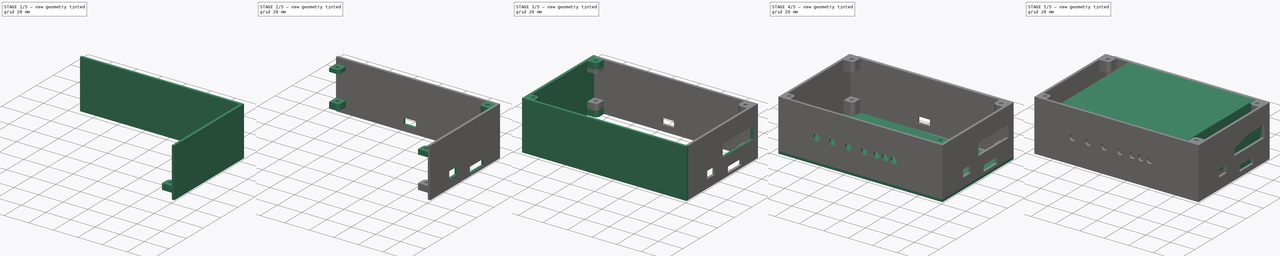
[diagram: build sequence overview — one tinted view per stage of 5, left to right]
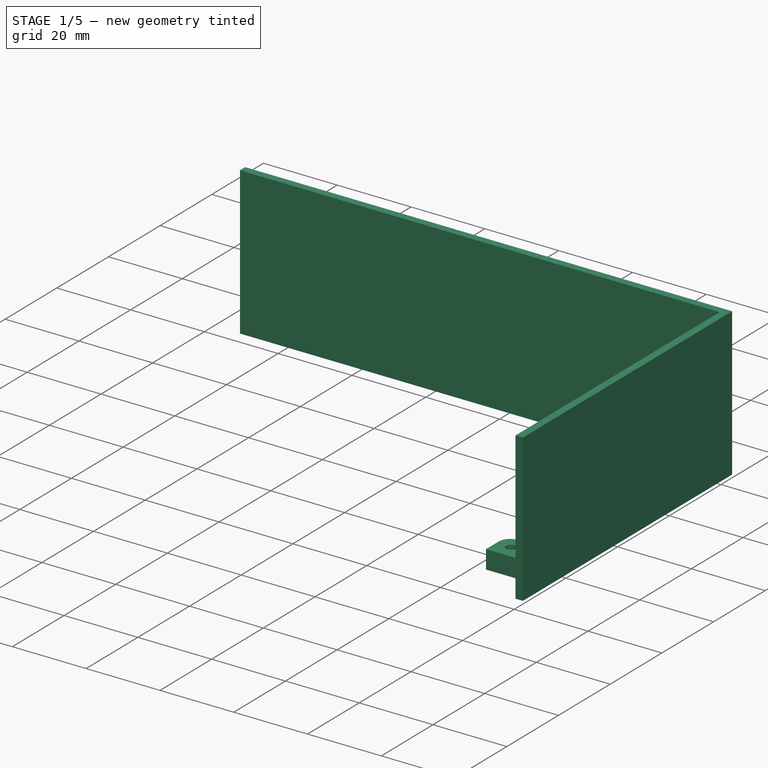
[diagram: stage 1 of 5 — iso view after this stage's code; geometry added in this stage tinted green]
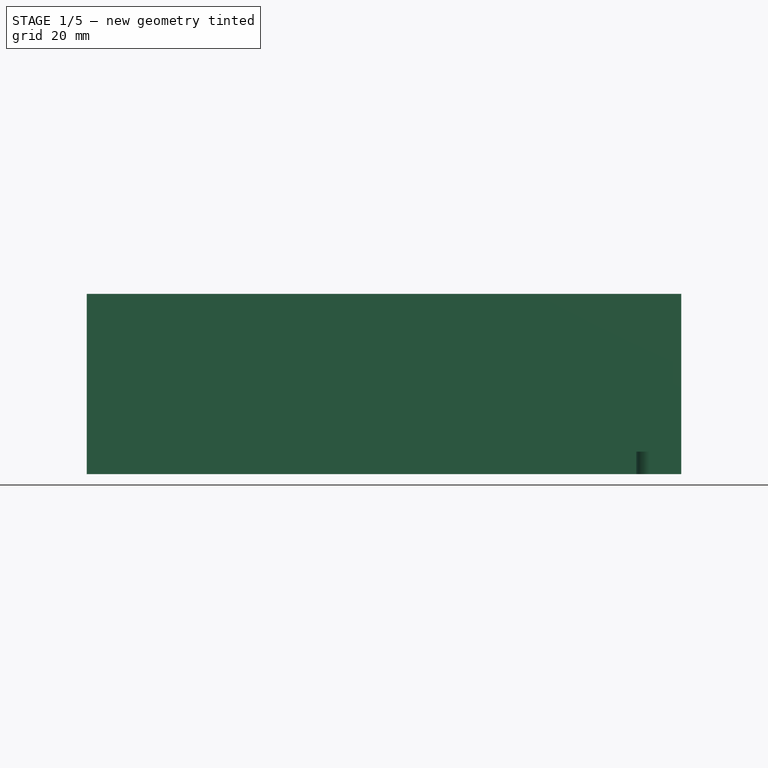
[diagram: stage 1 of 5 — front view after this stage's code; geometry added in this stage tinted green]
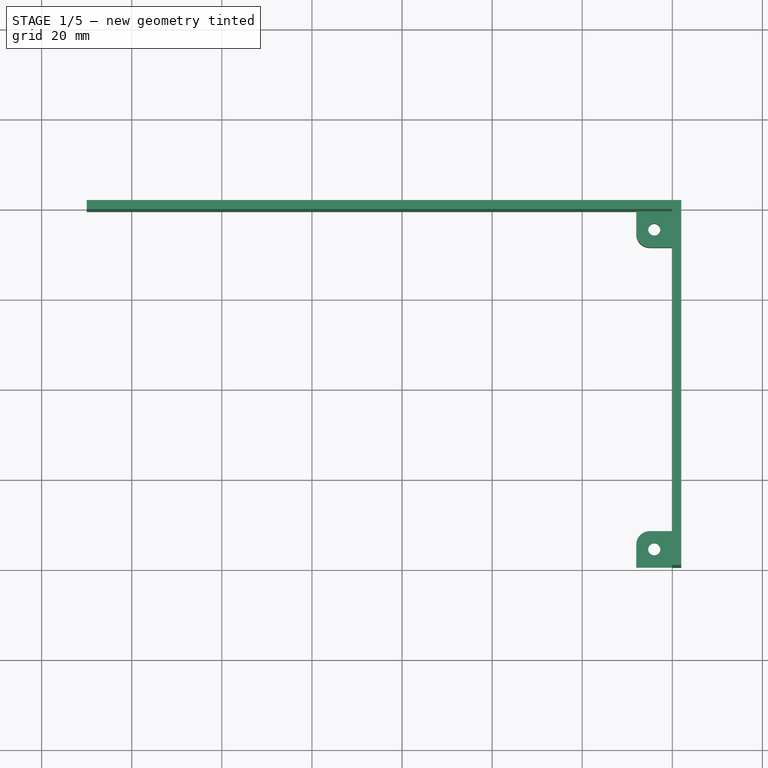
[diagram: stage 1 of 5 — top view after this stage's code; geometry added in this stage tinted green]
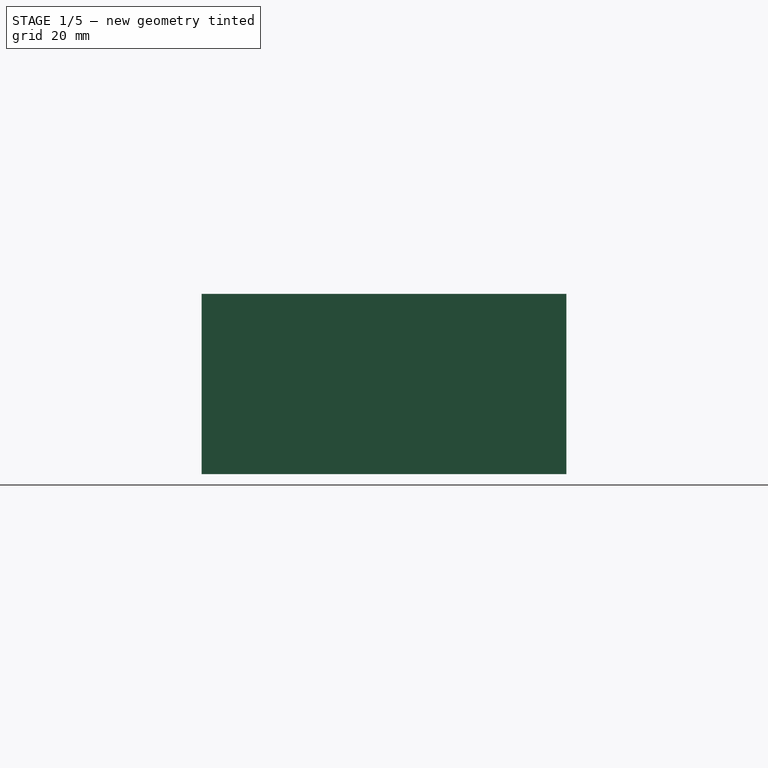
[diagram: stage 1 of 5 — right view after this stage's code; geometry added in this stage tinted green]
FCSTD DOCUMENT  (FreeCAD 0.19R24276 (Git))
Label: EIPLoggerBox
License: All rights reserved
LicenseURL: http://en.wikipedia.org/wiki/All_rights_reserved
objects: PartDesign::ShapeBinder×31, Sketcher::SketchObject×27, PartDesign::Line×24, PartDesign::Pad×17, PartDesign::Pocket×10, PartDesign::Point×8, PartDesign::Body×5, App::FeaturePython×2, App::MaterialObjectPython×2, App::DocumentObjectGroupPython×1
note: 149 computed .brp shape members not serialized (recipe doc carries the construction recipe); baked Part::Feature solids carry a one-line shape summary decoded from their .brp

FEATURE [PartDesign::Body] Body  label="Board"
  Group = -> [Sketch,Pad,Sketch001,Pad001,Sketch003,Pocket,Sketch004,Pocket001]
  Origin = -> Origin
  Tip = -> Pocket001
FEATURE [PartDesign::ShapeBinder] CopyPocket001  label="ReferenceSketch"
  TraceSupport = false
FEATURE [Sketcher::SketchObject] Sketch002
  ExternalGeometry = -> [CopyPocket001]
  FullyConstrained = true
  MapMode = 5
  Support = -> [XY_Plane001]
  sketch-geometry (8):
    g0: LineSegment StartX=-70 StartY=39.5 StartZ=0 EndX=60 EndY=39.5 EndZ=0
    g1: LineSegment StartX=60 StartY=39.5 StartZ=0 EndX=60 EndY=-39.5 EndZ=0
    g2: LineSegment StartX=60 StartY=-39.5 StartZ=0 EndX=62 EndY=-39.5 EndZ=0
    g3: LineSegment StartX=62 StartY=-39.5 StartZ=0 EndX=62 EndY=41.5 EndZ=0
    g4: LineSegment StartX=60 StartY=39.5 StartZ=0 EndX=62 EndY=41.5 EndZ=0
    g5: LineSegment StartX=62 StartY=41.5 StartZ=0 EndX=-70 EndY=41.5 EndZ=0
    g6: LineSegment StartX=-70 StartY=39.5 StartZ=0 EndX=-70 EndY=41.5 EndZ=0
    g7: LineSegment StartX=35 StartY=29.5 StartZ=0 EndX=60 EndY=39.5 EndZ=0
  constraints (22):
    c: Horizontal(g0)
    c: DistanceX(g0,g0) = 130
    c: Coincident(g1,g0)
    c: Vertical(g1)
    c: DistanceY(g1,g1) = 79
    c: Coincident(g2,g1)
    c: Horizontal(g2)
    c: DistanceX(g2,g2) = 2
    c: Coincident(g3,g2)
    c: Vertical(g3)
    c: Coincident(g4,g0)
    c: Coincident(g4,g3)
    c: DistanceY(g4,g4) = 2
    c: Coincident(g5,g3)
    c: Horizontal(g5)
    c: DistanceX(g5,g5) = 132
    c: Coincident(g6,g0)
    c: Coincident(g6,g5)
    c: Coincident(g7,g-5)
    c: Coincident(g7,g0)
    c: DistanceX(g7,g7) = 25
    c: DistanceY(g7,g7) = 10
FEATURE [PartDesign::Pad] Pad002  label="Sides"
  Direction = (1,1,1)
  Length = 40
  Length2 = 100
  Profile = -> Sketch002
  Type = 0
FEATURE [Sketcher::SketchObject] Sketch005
  ExternalGeometry = -> [Pad002]
  FullyConstrained = true
  MapMode = 5
  Placement = pos=(0,0,0) rot=(1,0,0;3.14159rad)
  Support = -> [Pad002]
  sketch-geometry (7):
    g0: LineSegment StartX=55 StartY=-31.5 StartZ=0 EndX=60 EndY=-31.5 EndZ=0
    g1: LineSegment StartX=60 StartY=-31.5 StartZ=0 EndX=60 EndY=-39.5 EndZ=0
    g2: LineSegment StartX=60 StartY=-39.5 StartZ=0 EndX=52 EndY=-39.5 EndZ=0
    g3: LineSegment StartX=52 StartY=-39.5 StartZ=0 EndX=52 EndY=-34.5 EndZ=0
    g4: ArcOfCircle CenterX=55 CenterY=-34.5 CenterZ=0 NormalX=0 NormalY=0 NormalZ=1 AngleXU=0 Radius=3 StartAngle=1.5708 EndAngle=3.14159
    g5: LineSegment StartX=55 StartY=-34.5 StartZ=0 EndX=60 EndY=-39.5 EndZ=0
    g6: LineSegment StartX=60 StartY=-39.5 StartZ=0 EndX=60 EndY=-31.5 EndZ=0
  constraints (17):
    c: Coincident(g0,g1)
    c: Coincident(g1,g2)
    c: Coincident(g2,g3)
    c: Horizontal(g0)
    c: Horizontal(g2)
    c: Vertical(g1)
    c: Vertical(g3)
    c: Coincident(g1,g-3)
    c: Tangent(g0,g4) = 1.5708
    c: Tangent(g3,g4) = 1.5708
    c: Coincident(g5,g4)
    c: Coincident(g5,g1)
    c: DistanceY(g5,g5) = 5
    c: DistanceX(g5,g5) = 5
    c: Coincident(g6,g1)
    c: Coincident(g6,g0)
    c: Radius(g4) = 3
FEATURE [PartDesign::Pad] Pad003  label="BR Flap"
  BaseFeature = -> Pad002
  Direction = (0,0,9)
  Length = 10
  Length2 = 100
  Profile = -> Sketch005
  Type = 0
  UseCustomVector = true
FEATURE [Sketcher::SketchObject] Sketch006
  ExternalGeometry = -> [Pad003]
  FullyConstrained = true
  MapMode = 5
  Placement = pos=(0,0,0) rot=(1,0,0;3.14159rad)
  Support = -> [Pad003]
  sketch-geometry (4):
    g0: LineSegment StartX=52 StartY=-39.5 StartZ=0 EndX=56 EndY=-35.5 EndZ=0
    g1: LineSegment StartX=56 StartY=-35.5 StartZ=0 EndX=60 EndY=-39.5 EndZ=0
    g2: LineSegment StartX=56 StartY=-35.5 StartZ=0 EndX=60 EndY=-31.5 EndZ=0
    g3: Circle CenterX=56 CenterY=-35.5 CenterZ=0 NormalX=0 NormalY=0 NormalZ=1 AngleXU=0 Radius=1.35
  constraints (9):
    c: Coincident(g0,g-5)
    c: Coincident(g1,g0)
    c: Coincident(g1,g-4)
    c: Coincident(g2,g0)
    c: Coincident(g2,g-4)
    c: Equal(g0,g1)
    c: Equal(g1,g2)
    c: Coincident(g3,g0)
    c: Radius(g3) = 1.35
FEATURE [PartDesign::Pocket] Pocket002  label="BR Flap Hole"
  BaseFeature = -> Pad003
  Length = 10
  Length2 = 100
  Profile = -> Sketch006
  Type = 0
FEATURE [Sketcher::SketchObject] Sketch007
  AttachmentOffset = pos=(0,0,-5) rot=(0,0,1;0rad)
  ExternalGeometry = -> [Pocket002]
  FullyConstrained = true
  MapMode = 5
  Placement = pos=(0,0,5) rot=(1,0,0;3.14159rad)
  Support = -> [Pocket002]
  sketch-geometry (8):
    g0: LineSegment StartX=60 StartY=39.5 StartZ=0 EndX=55 EndY=34.5 EndZ=0
    g1: LineSegment StartX=60 StartY=31.5 StartZ=0 EndX=55 EndY=31.5 EndZ=0
    g2: LineSegment StartX=52 StartY=34.5 StartZ=0 EndX=52 EndY=39.5 EndZ=0
    g3: ArcOfCircle CenterX=55 CenterY=34.5 CenterZ=0 NormalX=0 NormalY=0 NormalZ=1 AngleXU=0 Radius=3 StartAngle=3.14159 EndAngle=4.71239
    g4: LineSegment StartX=60 StartY=31.5 StartZ=0 EndX=60 EndY=39.5 EndZ=0
    g5: LineSegment StartX=60 StartY=39.5 StartZ=0 EndX=52 EndY=39.5 EndZ=0
    g6: LineSegment StartX=52 StartY=39.5 StartZ=0 EndX=60 EndY=39.5 EndZ=0
    g7: LineSegment StartX=60 StartY=39.5 StartZ=0 EndX=60 EndY=31.5 EndZ=0
  constraints (19):
    c: Coincident(g0,g-3)
    c: DistanceX(g0,g0) = 5
    c: DistanceY(g0,g0) = 5
    c: Horizontal(g1)
    c: Vertical(g2)
    c: Tangent(g1,g3) = 1.5708
    c: Tangent(g2,g3) = 1.5708
    c: Coincident(g3,g0)
    c: Radius(g3) = 3
    c: Coincident(g4,g1)
    c: Coincident(g4,g0)
    c: Vertical(g4)
    c: Coincident(g5,g0)
    c: Coincident(g5,g2)
    c: Horizontal(g5)
    c: Coincident(g6,g2)
    c: Coincident(g6,g0)
    c: Coincident(g7,g6)
    c: Coincident(g7,g1)
FEATURE [PartDesign::Pad] Pad004  label="TR Flap"
  BaseFeature = -> Pocket002
  Direction = (0,0,5)
  Length = 5
  Length2 = 5
  Profile = -> Sketch007
  Type = 0
  UseCustomVector = true
FEATURE [Sketcher::SketchObject] Sketch008
  ExternalGeometry = -> [Pad004]
  FullyConstrained = true
  MapMode = 5
  Placement = pos=(0,0,5) rot=(1,0,0;3.14159rad)
  Support = -> [Pad004]
  sketch-geometry (4):
    g0: LineSegment StartX=52 StartY=39.5 StartZ=0 EndX=56 EndY=35.5 EndZ=0
    g1: LineSegment StartX=56 StartY=35.5 StartZ=0 EndX=60 EndY=39.5 EndZ=0
    g2: LineSegment StartX=56 StartY=35.5 StartZ=0 EndX=60 EndY=31.5 EndZ=0
    g3: Circle CenterX=56 CenterY=35.5 CenterZ=0 NormalX=0 NormalY=0 NormalZ=1 AngleXU=0 Radius=1.35
  constraints (10):
    c: Coincident(g0,g-4)
    c: Coincident(g1,g0)
    c: PointOnObject(g1,g-4)
    c: Equal(g1,g0)
    c: Coincident(g2,g0)
    c: Coincident(g2,g-5)
    c: Equal(g1,g2)
    c: Perpendicular(g0,g1)
    c: Coincident(g3,g0)
    c: Radius(g3) = 1.35
FEATURE [PartDesign::Pocket] Pocket003  label="TR Flap Hole"
  BaseFeature = -> Pad004
  Length = 5
  Length2 = 100
  Profile = -> Sketch008
  Type = 0
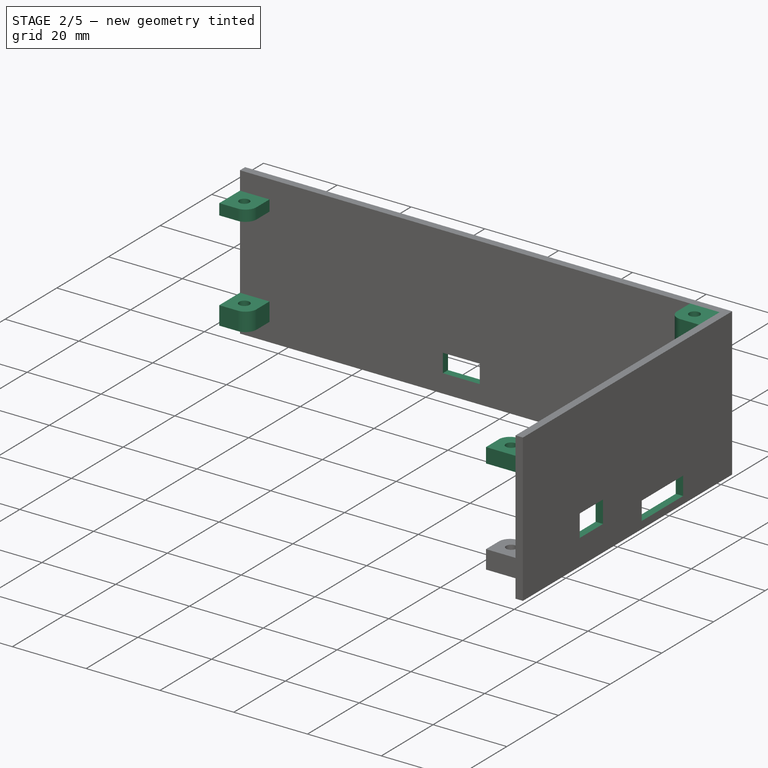
[diagram: stage 2 of 5 — iso view after this stage's code; geometry added in this stage tinted green]
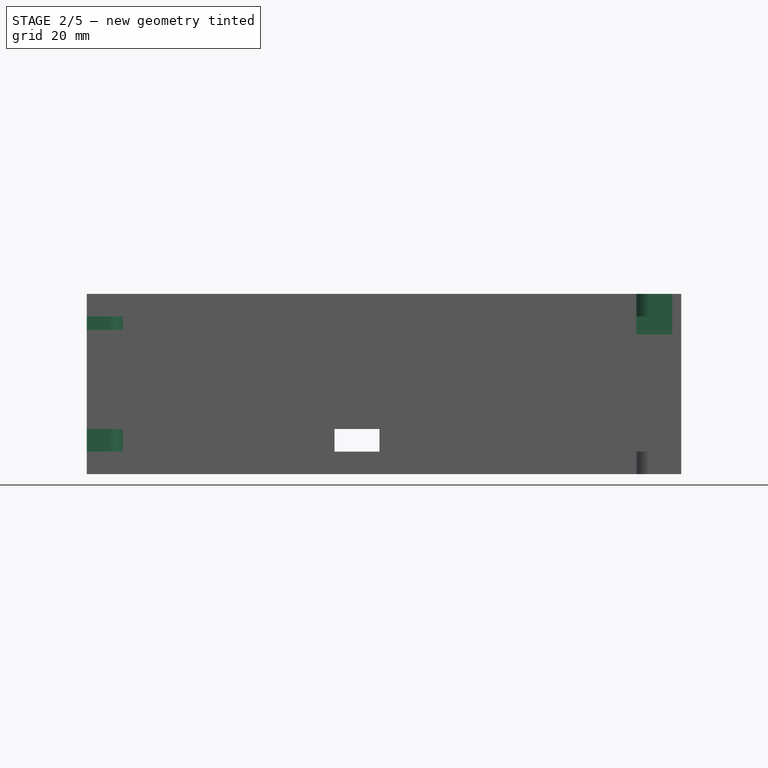
[diagram: stage 2 of 5 — front view after this stage's code; geometry added in this stage tinted green]
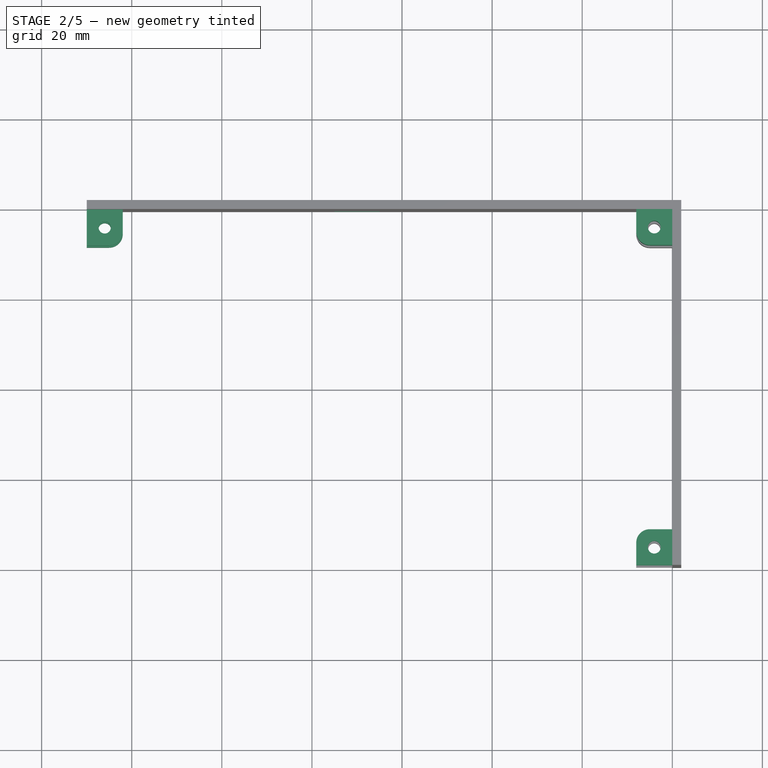
[diagram: stage 2 of 5 — top view after this stage's code; geometry added in this stage tinted green]
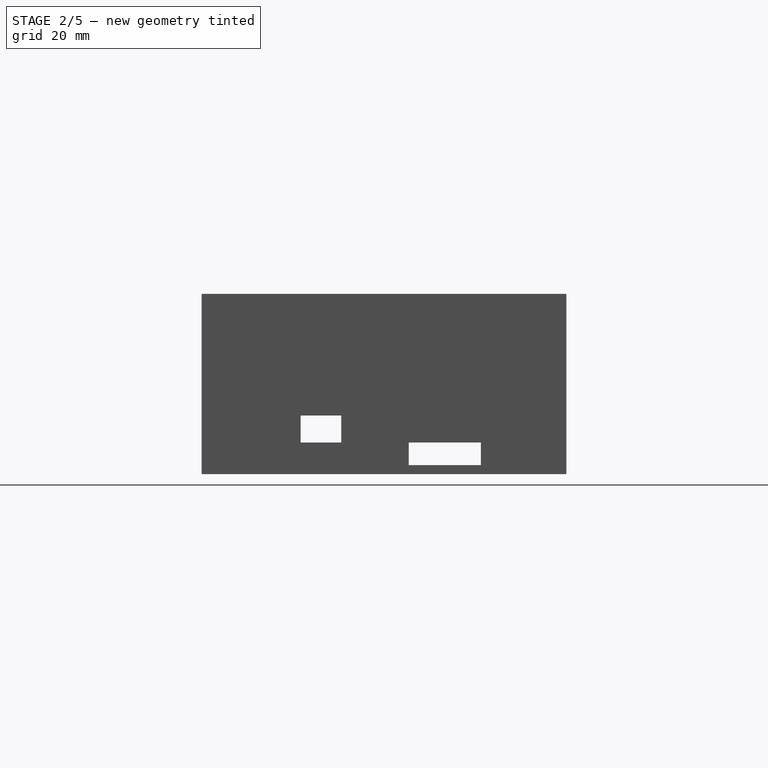
[diagram: stage 2 of 5 — right view after this stage's code; geometry added in this stage tinted green]
FEATURE [Sketcher::SketchObject] Sketch009
  AttachmentOffset = pos=(0,0,25) rot=(0,0,1;0rad)
  ExternalGeometry = -> [Pocket003]
  FullyConstrained = true
  MapMode = 5
  Placement = pos=(0,0,35) rot=(0,0,1;0rad)
  Support = -> [Pocket003]
  sketch-geometry (7):
    g0: LineSegment StartX=60 StartY=-31.5 StartZ=0 EndX=55 EndY=-31.5 EndZ=0
    g1: LineSegment StartX=52 StartY=-34.5 StartZ=0 EndX=52 EndY=-39.5 EndZ=0
    g2: LineSegment StartX=52 StartY=-39.5 StartZ=0 EndX=60 EndY=-39.5 EndZ=0
    g3: LineSegment StartX=60 StartY=-31.5 StartZ=0 EndX=60 EndY=-39.5 EndZ=0
    g4: Circle CenterX=56 CenterY=-35.5 CenterZ=0 NormalX=0 NormalY=0 NormalZ=1 AngleXU=0 Radius=1.41421
    g5: ArcOfCircle CenterX=55 CenterY=-34.5 CenterZ=0 NormalX=0 NormalY=0 NormalZ=1 AngleXU=0 Radius=3 StartAngle=1.5708 EndAngle=3.14159
    g6: LineSegment StartX=60 StartY=-39.5 StartZ=0 EndX=55 EndY=-34.5 EndZ=0
  constraints (15):
    c: Coincident(g0,g-6)
    c: Horizontal(g0)
    c: Coincident(g1,g-5)
    c: Vertical(g1)
    c: Coincident(g2,g1)
    c: Coincident(g2,g-4)
    c: Coincident(g3,g0)
    c: Coincident(g3,g2)
    c: Coincident(g4,g-8)
    c: PointOnObject(g-7,g4)
    c: Tangent(g0,g5) = -1.5708
    c: Tangent(g1,g5) = -1.5708
    c: Coincident(g6,g2)
    c: DistanceX(g6,g6) = 5
    c: Coincident(g6,g5)
FEATURE [PartDesign::Pad] Pad005  label="Tr Flap 2"
  BaseFeature = -> Pocket003
  Direction = (0,0,-1)
  Length = 4
  Length2 = 100
  Profile = -> Sketch009
  Type = 0
  UseCustomVector = true
FEATURE [Sketcher::SketchObject] Sketch010
  AttachmentOffset = pos=(0,0,30) rot=(0,0,1;0rad)
  ExternalGeometry = -> [Pad005]
  FullyConstrained = true
  MapMode = 5
  Placement = pos=(0,0,40) rot=(0,0,1;0rad)
  Support = -> [Pad005]
  sketch-geometry (8):
    g0: LineSegment StartX=60 StartY=39.5 StartZ=0 EndX=56 EndY=35.5 EndZ=0
    g1: LineSegment StartX=52 StartY=39.5 StartZ=0 EndX=60 EndY=39.5 EndZ=0
    g2: LineSegment StartX=60 StartY=39.5 StartZ=0 EndX=60 EndY=31.5 EndZ=0
    g3: LineSegment StartX=60 StartY=31.5 StartZ=0 EndX=55 EndY=31.5 EndZ=0
    g4: LineSegment StartX=52 StartY=34.5 StartZ=0 EndX=52 EndY=39.5 EndZ=0
    g5: Circle CenterX=56 CenterY=35.5 CenterZ=0 NormalX=0 NormalY=0 NormalZ=1 AngleXU=0 Radius=1.41421
    g6: ArcOfCircle CenterX=55 CenterY=34.5 CenterZ=0 NormalX=0 NormalY=0 NormalZ=1 AngleXU=0 Radius=3 StartAngle=3.14159 EndAngle=4.71239
    g7: LineSegment StartX=55 StartY=34.5 StartZ=0 EndX=60 EndY=39.5 EndZ=0
  constraints (17):
    c: Coincident(g0,g-4)
    c: Coincident(g0,g-8)
    c: Coincident(g1,g2)
    c: Coincident(g2,g3)
    c: Coincident(g4,g1)
    c: Horizontal(g3)
    c: Vertical(g4)
    c: Coincident(g2,g-5)
    c: Coincident(g1,g0)
    c: Coincident(g1,g-7)
    c: Coincident(g5,g0)
    c: PointOnObject(g-6,g5)
    c: Tangent(g3,g6) = 1.5708
    c: Tangent(g4,g6) = 1.5708
    c: Coincident(g7,g6)
    c: Coincident(g7,g1)
    c: DistanceX(g7,g7) = 5
FEATURE [PartDesign::Pad] Pad006  label="TR Flap 3"
  BaseFeature = -> Pad005
  Direction = (0,0,-1)
  Length = 8
  Length2 = 100
  Profile = -> Sketch010
  Type = 0
  UseCustomVector = true
FEATURE [Sketcher::SketchObject] Sketch011
  AttachmentOffset = pos=(0,0,-5) rot=(0,0,1;0rad)
  ExternalGeometry = -> [Pad006]
  FullyConstrained = true
  MapMode = 5
  Placement = pos=(0,0,35) rot=(0,0,1;0rad)
  Support = -> [Pad006]
  sketch-geometry (10):
    g0: LineSegment StartX=-70 StartY=39.5 StartZ=0 EndX=-62 EndY=39.5 EndZ=0
    g1: LineSegment StartX=-62 StartY=39.5 StartZ=0 EndX=-62 EndY=34.5 EndZ=0
    g2: LineSegment StartX=-65 StartY=31.5 StartZ=0 EndX=-70 EndY=31.5 EndZ=0
    g3: LineSegment StartX=-70 StartY=31.5 StartZ=0 EndX=-70 EndY=39.5 EndZ=0
    g4: ArcOfCircle CenterX=-65 CenterY=34.5 CenterZ=0 NormalX=0 NormalY=0 NormalZ=1 AngleXU=0 Radius=3 StartAngle=4.71239 EndAngle=6.28319
    g5: LineSegment StartX=-70 StartY=39.5 StartZ=0 EndX=-65 EndY=34.5 EndZ=0
    g6: LineSegment StartX=-70 StartY=39.5 StartZ=0 EndX=-66 EndY=35.5 EndZ=0
    g7: LineSegment StartX=-62 StartY=39.5 StartZ=0 EndX=-66 EndY=35.5 EndZ=0
    g8: LineSegment StartX=-66 StartY=35.5 StartZ=0 EndX=-70 EndY=31.5 EndZ=0
    g9: Circle CenterX=-66 CenterY=35.5 CenterZ=0 NormalX=0 NormalY=0 NormalZ=1 AngleXU=0 Radius=1.35
  constraints (24):
    c: Coincident(g0,g1)
    c: Coincident(g2,g3)
    c: Coincident(g3,g0)
    c: Horizontal(g0)
    c: Horizontal(g2)
    c: Vertical(g1)
    c: Vertical(g3)
    c: Coincident(g0,g-3)
    c: Tangent(g2,g4) = 1.5708
    c: Tangent(g1,g4) = 1.5708
    c: Coincident(g5,g0)
    c: Coincident(g4,g5)
    c: DistanceY(g5,g5) = 5
    c: DistanceX(g5,g5) = 5
    c: Radius(g4) = 3
    c: Coincident(g6,g0)
    c: Coincident(g7,g0)
    c: Coincident(g7,g6)
    c: Equal(g7,g6)
    c: Coincident(g8,g6)
    c: Coincident(g8,g2)
    c: Equal(g6,g8)
    c: Coincident(g9,g6)
    c: Radius(g9) = 1.35
FEATURE [PartDesign::Pad] Pad007  label="TR Flap 4"
  BaseFeature = -> Pad006
  Direction = (0,0,-1)
  Length = 3
  Length2 = 100
  Profile = -> Sketch011
  Type = 0
  UseCustomVector = true
FEATURE [Sketcher::SketchObject] Sketch012
  AttachmentOffset = pos=(0,0,27) rot=(0,0,1;0rad)
  ExternalGeometry = -> [Pad007]
  FullyConstrained = true
  MapMode = 5
  Placement = pos=(0,0,5) rot=(1,0,0;3.14159rad)
  Support = -> [Pad007]
  sketch-geometry (6):
    g0: LineSegment StartX=-70 StartY=-31.5 StartZ=0 EndX=-65 EndY=-31.5 EndZ=0
    g1: LineSegment StartX=-62 StartY=-34.5 StartZ=0 EndX=-62 EndY=-39.5 EndZ=0
    g2: LineSegment StartX=-62 StartY=-39.5 StartZ=0 EndX=-70 EndY=-39.5 EndZ=0
    g3: LineSegment StartX=-70 StartY=-39.5 StartZ=0 EndX=-70 EndY=-31.5 EndZ=0
    g4: Circle CenterX=-66 CenterY=-35.5 CenterZ=0 NormalX=0 NormalY=0 NormalZ=1 AngleXU=0 Radius=1.41421
    g5: ArcOfCircle CenterX=-65 CenterY=-34.5 CenterZ=0 NormalX=0 NormalY=0 NormalZ=1 AngleXU=0 Radius=3 StartAngle=0 EndAngle=1.5708
  constraints (14):
    c: Coincident(g1,g2)
    c: Coincident(g2,g3)
    c: Coincident(g3,g0)
    c: Horizontal(g0)
    c: Horizontal(g2)
    c: Vertical(g1)
    c: Vertical(g3)
    c: Coincident(g0,g-6)
    c: Coincident(g1,g-3)
    c: Coincident(g4,g-8)
    c: PointOnObject(g-4,g4)
    c: Tangent(g1,g5) = 1.5708
    c: Tangent(g0,g5) = 1.5708
    c: Radius(g5) = 3
FEATURE [PartDesign::Pad] Pad008  label="TR Flap 5"
  BaseFeature = -> Pad007
  Direction = (0,0,1)
  Length = 5
  Length2 = 100
  Profile = -> Sketch012
  Type = 0
  UseCustomVector = true
FEATURE [PartDesign::Line] DatumLine019
  AttacherType = Attacher::AttachEngineLine
  Length = 20
  ResizeMode = 0
FEATURE [PartDesign::Line] DatumLine020
  AttacherType = Attacher::AttachEngineLine
  Length = 20
  MapMode = 29
  Placement = pos=(62,-39.5,0) rot=(0,0,1;0rad)
  ResizeMode = 0
  Support = -> [Pad008]
FEATURE [PartDesign::Line] DatumLine021
  AttacherType = Attacher::AttachEngineLine
  Length = 20
  MapMode = 29
  Placement = pos=(62,0,0) rot=(0,0.707107,0.707107;3.14159rad)
  ResizeMode = 0
  Support = -> [Pad008]
FEATURE [PartDesign::Line] DatumLine022
  AttacherType = Attacher::AttachEngineLine
  Length = 20
  MapMode = 29
  Placement = pos=(62,41.5,0) rot=(0,0,1;0rad)
  ResizeMode = 0
  Support = -> [Pad008]
FEATURE [Sketcher::SketchObject] Sketch024
  ExternalGeometry = -> [DatumLine022,DatumLine021]
  FullyConstrained = true
  MapMode = 5
  Placement = pos=(62,0,0) rot=(0.57735,0.57735,0.57735;2.0944rad)
  Support = -> [Pad008]
  sketch-geometry (10):
    g0: LineSegment StartX=6.5 StartY=7 StartZ=0 EndX=22.5 EndY=7 EndZ=0
    g1: LineSegment StartX=22.5 StartY=7 StartZ=0 EndX=22.5 EndY=2 EndZ=0
    g2: LineSegment StartX=22.5 StartY=2 StartZ=0 EndX=6.5 EndY=2 EndZ=0
    g3: LineSegment StartX=6.5 StartY=2 StartZ=0 EndX=6.5 EndY=7 EndZ=0
    g4: LineSegment StartX=22.5 StartY=2 StartZ=0 EndX=41.5 EndY=-8e-15 EndZ=0
    g5: LineSegment StartX=-8.5 StartY=7 StartZ=0 EndX=41.5 EndY=-8e-15 EndZ=0
    g6: LineSegment StartX=-17.5 StartY=13 StartZ=0 EndX=-8.5 EndY=13 EndZ=0
    g7: LineSegment StartX=-8.5 StartY=13 StartZ=0 EndX=-8.5 EndY=7 EndZ=0
    g8: LineSegment StartX=-8.5 StartY=7 StartZ=0 EndX=-17.5 EndY=7 EndZ=0
    g9: LineSegment StartX=-17.5 StartY=7 StartZ=0 EndX=-17.5 EndY=13 EndZ=0
  constraints (29):
    c: Coincident(g0,g1)
    c: Coincident(g1,g2)
    c: Coincident(g2,g3)
    c: Coincident(g3,g0)
    c: Horizontal(g0)
    c: Horizontal(g2)
    c: Vertical(g1)
    c: Vertical(g3)
    c: DistanceX(g0,g0) = 16
    c: DistanceY(g3,g3) = 5
    c: Coincident(g4,g1)
    c: PointOnObject(g4,g-3)
    c: PointOnObject(g4,g-4)
    c: DistanceY(g4,g4) = 2
    c: DistanceX(g4,g4) = 19
    c: Coincident(g5,g4)
    c: DistanceX(g5,g5) = 50
    c: DistanceY(g5,g5) = 7
    c: Coincident(g6,g7)
    c: Coincident(g7,g8)
    c: Coincident(g8,g9)
    c: Coincident(g9,g6)
    c: Horizontal(g6)
    c: Horizontal(g8)
    c: Vertical(g7)
    c: Vertical(g9)
    c: Coincident(g7,g5)
    c: DistanceY(g7,g7) = 6
    c: DistanceX(g6,g6) = 9
FEATURE [PartDesign::Line] DatumLine023
  AttacherType = Attacher::AttachEngineLine
  Length = 20
  MapMode = 29
  Placement = pos=(62,0,40) rot=(0,0.707107,0.707107;3.14159rad)
  ResizeMode = 0
  Support = -> [Pad008]
FEATURE [PartDesign::Pocket] Pocket006
  BaseFeature = -> Pad008
  Length = 2
  Length2 = 100
  Profile = -> Sketch024
  Type = 0
FEATURE [Sketcher::SketchObject] Sketch025
  ExternalGeometry = -> [Pocket006]
  FullyConstrained = true
  MapMode = 5
  Placement = pos=(0,41.5,0) rot=(0,0.707107,0.707107;3.14159rad)
  Support = -> [Pocket006]
  sketch-geometry (6):
    g0: LineSegment StartX=-62 StartY=0 StartZ=0 EndX=5 EndY=0 EndZ=0
    g1: LineSegment StartX=5 StartY=0 StartZ=0 EndX=5 EndY=5 EndZ=0
    g2: LineSegment StartX=5 StartY=10 StartZ=0 EndX=15 EndY=10 EndZ=0
    g3: LineSegment StartX=15 StartY=10 StartZ=0 EndX=15 EndY=5 EndZ=0
    g4: LineSegment StartX=15 StartY=5 StartZ=0 EndX=5 EndY=5 EndZ=0
    g5: LineSegment StartX=5 StartY=5 StartZ=0 EndX=5 EndY=10 EndZ=0
  constraints (17):
    c: Horizontal(g0)
    c: DistanceX(g0,g0) = 67
    c: Coincident(g0,g-3)
    c: DistanceY(g1,g1) = 5
    c: Vertical(g1)
    c: Coincident(g1,g0)
    c: Coincident(g2,g3)
    c: Coincident(g3,g4)
    c: Coincident(g4,g5)
    c: Coincident(g5,g2)
    c: Horizontal(g2)
    c: Horizontal(g4)
    c: Vertical(g3)
    c: Vertical(g5)
    c: DistanceX(g4,g4) = 10
    c: DistanceY(g3,g3) = 5
    c: Coincident(g4,g1)
FEATURE [PartDesign::Pocket] Pocket007
  BaseFeature = -> Pocket006
  Length = 5
  Length2 = 100
  Profile = -> Sketch025
  Type = 0
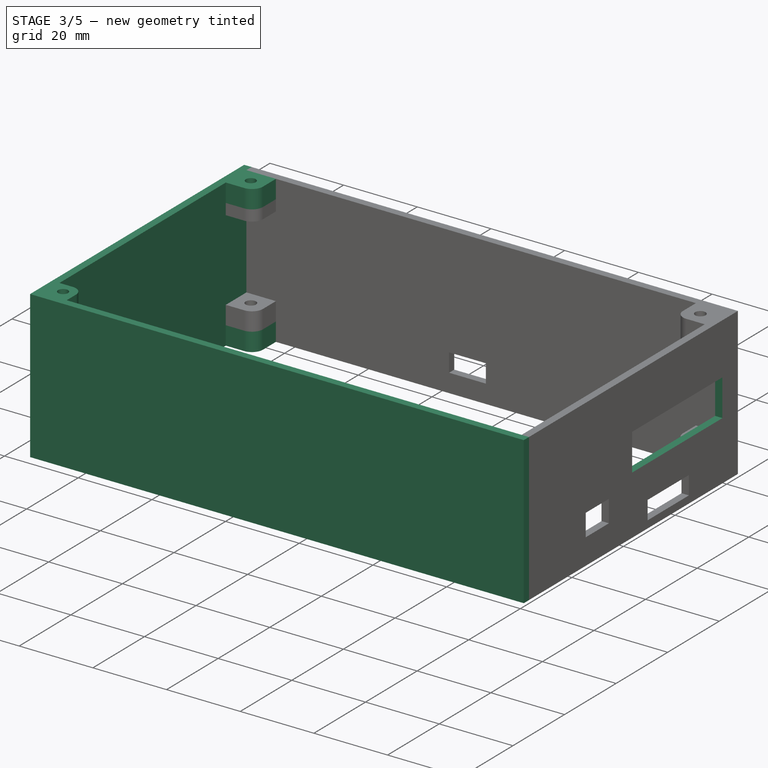
[diagram: stage 3 of 5 — iso view after this stage's code; geometry added in this stage tinted green]
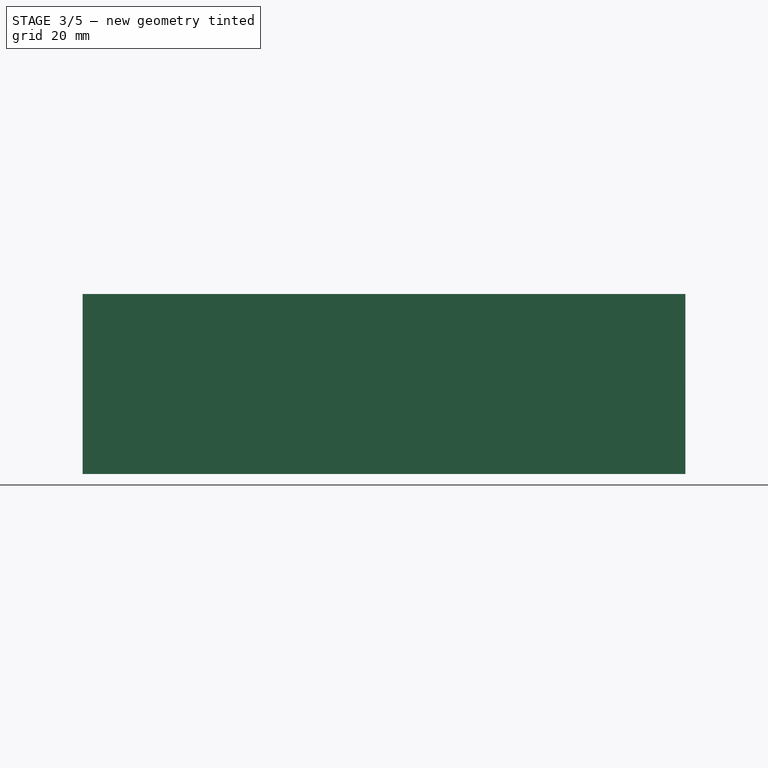
[diagram: stage 3 of 5 — front view after this stage's code; geometry added in this stage tinted green]
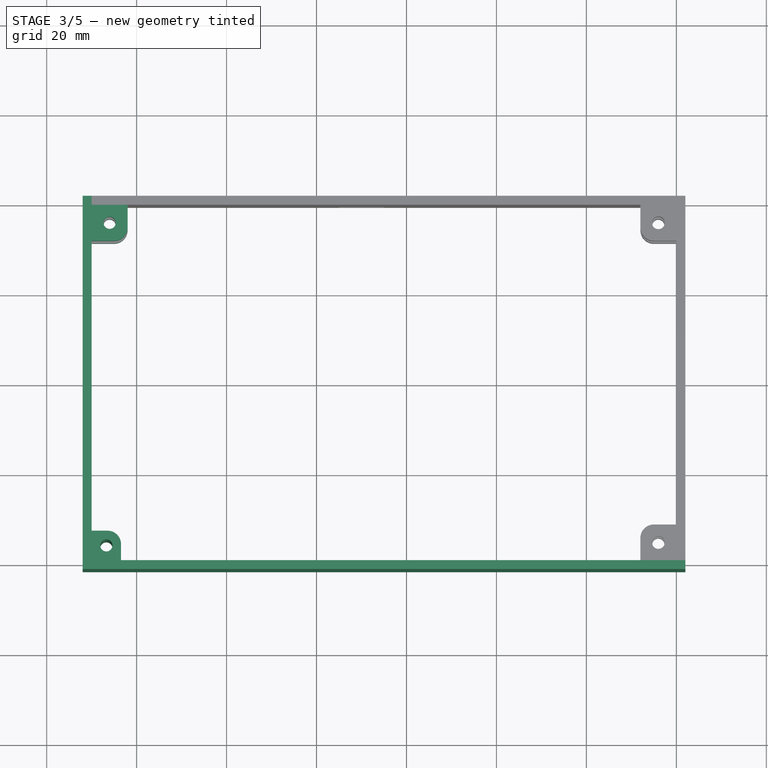
[diagram: stage 3 of 5 — top view after this stage's code; geometry added in this stage tinted green]
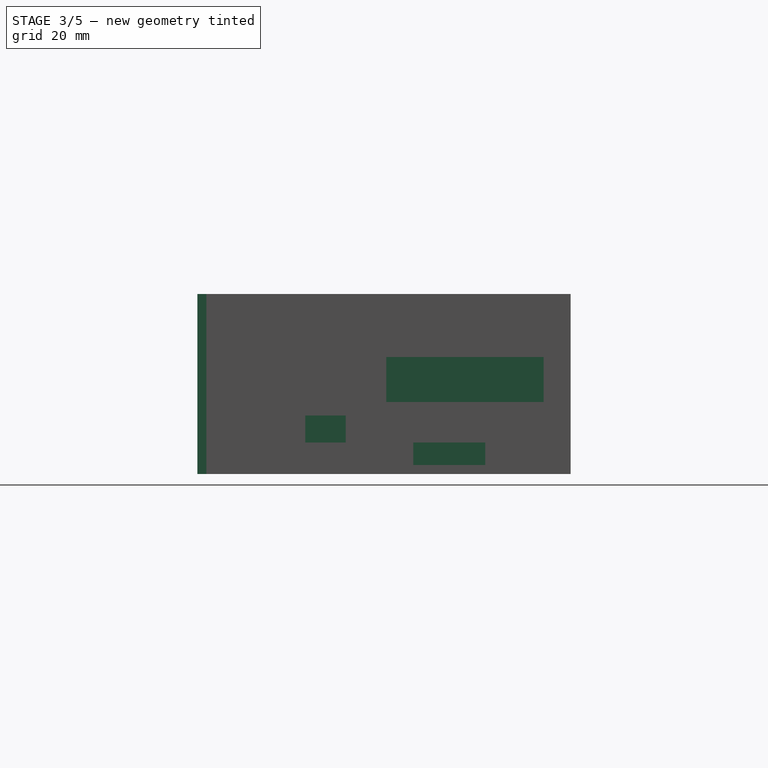
[diagram: stage 3 of 5 — right view after this stage's code; geometry added in this stage tinted green]
FEATURE [Sketcher::SketchObject] Sketch013
  ExternalGeometry = -> [CopyPocket001]
  FullyConstrained = true
  MapMode = 5
  Support = -> [XY_Plane002]
  sketch-geometry (7):
    g0: LineSegment StartX=-72 StartY=41.5 StartZ=0 EndX=-70 EndY=41.5 EndZ=0
    g1: LineSegment StartX=-70 StartY=41.5 StartZ=0 EndX=-70 EndY=-39.5 EndZ=0
    g2: LineSegment StartX=-70 StartY=-39.5 StartZ=0 EndX=62 EndY=-39.5 EndZ=0
    g3: LineSegment StartX=62 StartY=-39.5 StartZ=0 EndX=62 EndY=-41.5 EndZ=0
    g4: LineSegment StartX=62 StartY=-41.5 StartZ=0 EndX=-72 EndY=-41.5 EndZ=0
    g5: LineSegment StartX=-72 StartY=-41.5 StartZ=0 EndX=-72 EndY=41.5 EndZ=0
    g6: LineSegment StartX=60 StartY=-29.5 StartZ=0 EndX=62 EndY=-39.5 EndZ=0
  constraints (20):
    c: Horizontal(g0)
    c: Coincident(g1,g0)
    c: Vertical(g1)
    c: Coincident(g2,g1)
    c: Horizontal(g2)
    c: Coincident(g3,g2)
    c: Coincident(g4,g3)
    c: Horizontal(g4)
    c: Coincident(g5,g0)
    c: Vertical(g5)
    c: Vertical(g3)
    c: DistanceY(g3,g3) = 2
    c: DistanceX(g0,g0) = 2
    c: Coincident(g4,g5)
    c: DistanceX(g2,g2) = 132
    c: DistanceY(g1,g1) = 81
    c: DistanceY(g6,g6) = 10
    c: DistanceX(g6,g6) = 2
    c: Coincident(g2,g6)
    c: Coincident(g6,g-3)
FEATURE [PartDesign::Pad] Pad009  label="Sides001"
  Direction = (1,1,1)
  Length = 40
  Length2 = 100
  Profile = -> Sketch013
  Type = 0
FEATURE [Sketcher::SketchObject] Sketch014
  ExternalGeometry = -> [Pad009]
  FullyConstrained = true
  MapMode = 5
  Placement = pos=(0,0,40) rot=(0,0,1;0rad)
  Support = -> [Pad009]
  sketch-geometry (8):
    g0: LineSegment StartX=-70 StartY=-39.5 StartZ=0 EndX=-66.4645 EndY=-35.9645 EndZ=0
    g1: LineSegment StartX=-70 StartY=-32.9645 StartZ=0 EndX=-66.4645 EndY=-32.9645 EndZ=0
    g2: LineSegment StartX=-63.4645 StartY=-35.9645 StartZ=0 EndX=-63.4645 EndY=-39.5 EndZ=0
    g3: LineSegment StartX=-63.4645 StartY=-39.5 StartZ=0 EndX=-70 EndY=-39.5 EndZ=0
    g4: LineSegment StartX=-70 StartY=-39.5 StartZ=0 EndX=-70 EndY=-32.9645 EndZ=0
    g5: ArcOfCircle CenterX=-66.4645 CenterY=-35.9645 CenterZ=0 NormalX=0 NormalY=0 NormalZ=1 AngleXU=0 Radius=3 StartAngle=7e-16 EndAngle=1.5708
    g6: LineSegment StartX=-70 StartY=-32.9645 StartZ=0 EndX=-63.4645 EndY=-39.5 EndZ=0
    g7: Circle CenterX=-66.7322 CenterY=-36.2322 CenterZ=0 NormalX=0 NormalY=0 NormalZ=1 AngleXU=0 Radius=1.35
  constraints (19):
    c: Coincident(g0,g-3)
    c: Angle(g-3,g0) = 0.785398
    c: Distance(g0) = 5
    c: Coincident(g2,g3)
    c: Coincident(g3,g4)
    c: Coincident(g4,g1)
    c: Horizontal(g1)
    c: Horizontal(g3)
    c: Vertical(g2)
    c: Vertical(g4)
    c: Coincident(g3,g0)
    c: Tangent(g2,g5) = 1.5708
    c: Tangent(g1,g5) = 1.5708
    c: Radius(g5) = 3
    c: Coincident(g5,g0)
    c: Coincident(g6,g1)
    c: Coincident(g6,g2)
    c: Symmetric(g1,g2,g7)
    c: Radius(g7) = 1.35
FEATURE [PartDesign::Pad] Pad010  label="Flap"
  BaseFeature = -> Pad009
  Direction = (0,0,-1)
  Length = 40
  Length2 = 100
  Profile = -> Sketch014
  Type = 0
  UseCustomVector = true
FEATURE [Sketcher::SketchObject] Sketch015
  ExternalGeometry = -> [Pad010]
  FullyConstrained = true
  MapMode = 5
  Placement = pos=(0,0,40) rot=(0,0,1;0rad)
  Support = -> [Pad010]
  sketch-geometry (8):
    g0: LineSegment StartX=-70 StartY=39.5 StartZ=0 EndX=-62 EndY=39.5 EndZ=0
    g1: LineSegment StartX=-62 StartY=39.5 StartZ=0 EndX=-62 EndY=34.5 EndZ=0
    g2: LineSegment StartX=-65 StartY=31.5 StartZ=0 EndX=-70 EndY=31.5 EndZ=0
    g3: LineSegment StartX=-70 StartY=31.5 StartZ=0 EndX=-70 EndY=39.5 EndZ=0
    g4: LineSegment StartX=-70 StartY=31.5 StartZ=0 EndX=-62 EndY=39.5 EndZ=0
    g5: ArcOfCircle CenterX=-65 CenterY=34.5 CenterZ=0 NormalX=0 NormalY=0 NormalZ=1 AngleXU=0 Radius=3 StartAngle=4.71239 EndAngle=6.28319
    g6: Circle CenterX=-66 CenterY=35.5 CenterZ=0 NormalX=0 NormalY=0 NormalZ=1 AngleXU=0 Radius=1.35
    g7: LineSegment StartX=-70 StartY=41.5 StartZ=0 EndX=-70 EndY=39.5 EndZ=0
  constraints (20):
    c: Coincident(g0,g1)
    c: Coincident(g2,g3)
    c: Horizontal(g0)
    c: Horizontal(g2)
    c: Vertical(g1)
    c: Vertical(g3)
    c: Coincident(g4,g0)
    c: Coincident(g4,g2)
    c: Tangent(g1,g5) = 1.5708
    c: Tangent(g2,g5) = 1.5708
    c: DistanceY(g3,g3) = 8
    c: DistanceX(g0,g0) = 8
    c: Radius(g5) = 3
    c: Symmetric(g0,g2,g6)
    c: Radius(g6) = 1.35
    c: Vertical(g7)
    c: DistanceY(g7,g7) = 2
    c: Coincident(g7,g-3)
    c: Coincident(g3,g7)
    c: Coincident(g0,g3)
FEATURE [PartDesign::Pad] Pad011
  BaseFeature = -> Pad010
  Direction = (0,0,-1)
  Length = 5
  Length2 = 100
  Profile = -> Sketch015
  Type = 0
  UseCustomVector = true
FEATURE [Sketcher::SketchObject] Sketch016
  ExternalGeometry = -> [Pad011]
  FullyConstrained = true
  MapMode = 5
  Placement = pos=(0,0,0) rot=(1,0,0;3.14159rad)
  Support = -> [Pad011]
  sketch-geometry (7):
    g0: LineSegment StartX=-70 StartY=-39.5 StartZ=0 EndX=-62 EndY=-39.5 EndZ=0
    g1: LineSegment StartX=-62 StartY=-39.5 StartZ=0 EndX=-62 EndY=-34.5 EndZ=0
    g2: LineSegment StartX=-65 StartY=-31.5 StartZ=0 EndX=-70 EndY=-31.5 EndZ=0
    g3: LineSegment StartX=-70 StartY=-31.5 StartZ=0 EndX=-70 EndY=-39.5 EndZ=0
    g4: LineSegment StartX=-70 StartY=-31.5 StartZ=0 EndX=-62 EndY=-39.5 EndZ=0
    g5: ArcOfCircle CenterX=-65 CenterY=-34.5 CenterZ=0 NormalX=0 NormalY=0 NormalZ=1 AngleXU=0 Radius=3 StartAngle=9e-16 EndAngle=1.5708
    g6: Circle CenterX=-66 CenterY=-35.5 CenterZ=0 NormalX=0 NormalY=0 NormalZ=1 AngleXU=0 Radius=1.35
  constraints (17):
    c: Coincident(g0,g1)
    c: Coincident(g2,g3)
    c: Coincident(g3,g0)
    c: Horizontal(g0)
    c: Horizontal(g2)
    c: Vertical(g1)
    c: Vertical(g3)
    c: Coincident(g0,g-3)
    c: DistanceX(g0,g0) = 8
    c: Coincident(g4,g2)
    c: Coincident(g4,g0)
    c: Tangent(g1,g5) = -1.5708
    c: Tangent(g2,g5) = -1.5708
    c: Radius(g5) = 3
    c: DistanceY(g3,g3) = 8
    c: Symmetric(g2,g0,g6)
    c: Radius(g6) = 1.35
FEATURE [PartDesign::Pad] Pad012
  BaseFeature = -> Pad011
  Direction = (0,0,1)
  Length = 5
  Length2 = 100
  Profile = -> Sketch016
  Type = 0
  UseCustomVector = true
FEATURE [Sketcher::SketchObject] Sketch027
  ExternalGeometry = -> [Pocket007]
  FullyConstrained = true
  MapMode = 5
  Placement = pos=(62,0,0) rot=(0.57735,0.57735,0.57735;2.0944rad)
  Support = -> [Pocket007]
  sketch-geometry (5):
    g0: LineSegment StartX=0.5 StartY=26 StartZ=0 EndX=35.5 EndY=26 EndZ=0
    g1: LineSegment StartX=35.5 StartY=26 StartZ=0 EndX=35.5 EndY=16 EndZ=0
    g2: LineSegment StartX=35.5 StartY=16 StartZ=0 EndX=0.5 EndY=16 EndZ=0
    g3: LineSegment StartX=0.5 StartY=16 StartZ=0 EndX=0.5 EndY=26 EndZ=0
    g4: LineSegment StartX=6.5 StartY=7 StartZ=0 EndX=0.5 EndY=16 EndZ=0
  constraints (14):
    c: Coincident(g0,g1)
    c: Coincident(g1,g2)
    c: Coincident(g2,g3)
    c: Coincident(g3,g0)
    c: Horizontal(g0)
    c: Horizontal(g2)
    c: Vertical(g1)
    c: Vertical(g3)
    c: Coincident(g4,g-3)
    c: DistanceX(g4,g4) = 6
    c: DistanceY(g4,g4) = 9
    c: Coincident(g2,g4)
    c: DistanceX(g0,g0) = 35
    c: DistanceY(g1,g1) = 10
FEATURE [PartDesign::Pocket] Pocket009
  BaseFeature = -> Pocket007
  Length = 5
  Length2 = 100
  Profile = -> Sketch027
  Type = 0
FEATURE [App::FeaturePython] AppleseedProject  label="Appleseed Project"  # WARN: FeaturePython — macro-defined, semantics opaque (R4)
  AngularDeflection = 0.523599
  DelayedBuild = true
  GroundPlane = false
  GroundPlaneSizeFactor = 1
  GroundPlaneZ = 0
  LinearDeflection = 0.1
  OpenAfterRender = true
  RenderHeight = 600
  RenderWidth = 800
  Renderer = Appleseed
  Template = appleseed_standard.appleseed
  TransparencySensitivity = 0
FEATURE [App::FeaturePython] Camera  # WARN: FeaturePython — macro-defined, semantics opaque (R4)
  AspectRatio = 1
  FarDistance = 157.326
  FocalDistance = 81.8245
  Height = 163.649
  HeightAngle = 60
  NearDistance = 6.47382
  Placement = pos=(42.2414,-47.2414,67.2414) rot=(0.742906,0.307722,0.594473;1.21712rad)
  Projection = 1
  ViewportMapping = 3
FEATURE [App::MaterialObjectPython] Material  label="ABS Black"  # material (typed FeaturePython)
  Description = This is a blend AcrylnitrilButadienStyrol (ABS) material card. The values are at the low end of the spectrum. If you need a more precise material definition use the more specialised ABS-blend cards.
  Material = AuthorAndLicense=ABS-Generic,CardName=ABS-Generic,Color=(0.0, 0.0, 0.0, 1.0),Density=1060 kg/m^3,+16 more (map truncated)
  ProductURL = https://en.wikipedia.org/wiki/Acrylonitrile_butadiene_styrene
  Transparency = 0
FEATURE [PartDesign::Body] Body003  label="Cover B"
  Group = -> [DatumLine,CopyPad008,DatumLine001,CopyPad014,DatumLine002,CopyPad008001,DatumLine003,CopyPad014001,DatumPoint,CopyPad014002,DatumPoint001,CopyPad008002,DatumPoint002,CopyPad014003,DatumPoint003,CopyPad014004,Sketch019,Pad015,DatumLine012,CopyPocket001005,CopyPocket001006,CopyPocket001007,CopyPocket001008,DatumLine013,CopyPocket001009,DatumLine014,CopyPocket001010,DatumLine015,CopyPocket001011,+8 more]
  Material = -> Material
  Origin = -> Origin003
  Tip = -> Pocket005
FEATURE [PartDesign::Body] Body004  label="Cover T"
  Group = -> [DatumPoint004,CopyPad014005,DatumPoint005,CopyPad008003,DatumPoint006,CopyPad014006,DatumPoint007,CopyPad014007,DatumLine004,CopyPad008004,DatumLine005,CopyPad008005,DatumLine006,CopyPad014008,DatumLine007,CopyPad014009,Sketch020,Pad016,DatumLine008,CopyPocket001001,DatumLine009,CopyPocket001002,DatumLine010,CopyPocket001003,DatumLine011,CopyPocket001004,Sketch022,Pocket004]
  Material = -> Material
  Origin = -> Origin004
  Placement = pos=(0,0,42) rot=(0,0,1;0rad)
  Tip = -> Pocket004
FEATURE [App::MaterialObjectPython] Material001  label="ABS Yellow"  # material (typed FeaturePython)
  Description = This is a blend AcrylnitrilButadienStyrol (ABS) material card. The values are at the low end of the spectrum. If you need a more precise material definition use the more specialised ABS-blend cards.
  Material = AuthorAndLicense=ABS-Generic,CardName=ABS-Generic,Color=(1.0, 1.0, 0.0, 1.0),Density=1060 kg/m^3,+16 more (map truncated)
  ProductURL = https://en.wikipedia.org/wiki/Acrylonitrile_butadiene_styrene
  Transparency = 0
FEATURE [PartDesign::Body] Body001  label="Frame_BR"
  Group = -> [Sketch002,Pad002,Sketch005,Pad003,Sketch006,Pocket002,Sketch007,Pad004,Sketch008,Pocket003,Sketch009,Pad005,Sketch010,Pad006,Sketch011,Pad007,Sketch012,Pad008,Sketch024,DatumLine019,DatumLine020,DatumLine021,DatumLine022,DatumLine023,Pocket006,Sketch025,Pocket007,Sketch027,Pocket009]
  Material = -> Material001
  Origin = -> Origin001
  Tip = -> Pocket009
FEATURE [PartDesign::Body] Body002  label="Frame_TL"
  Group = -> [Sketch013,CopyPocket001,Pad009,Sketch014,Pad010,Sketch015,Pad011,Sketch016,Pad012,Sketch017,Pad013,Sketch018,Pad014,Sketch026,Pocket008]
  Material = -> Material001
  Origin = -> Origin002
  Tip = -> Pocket008
FEATURE [App::DocumentObjectGroupPython] MaterialContainer  label="Materials"  # scripted group (container) (typed FeaturePython)
  Group = -> [Material,Material001]
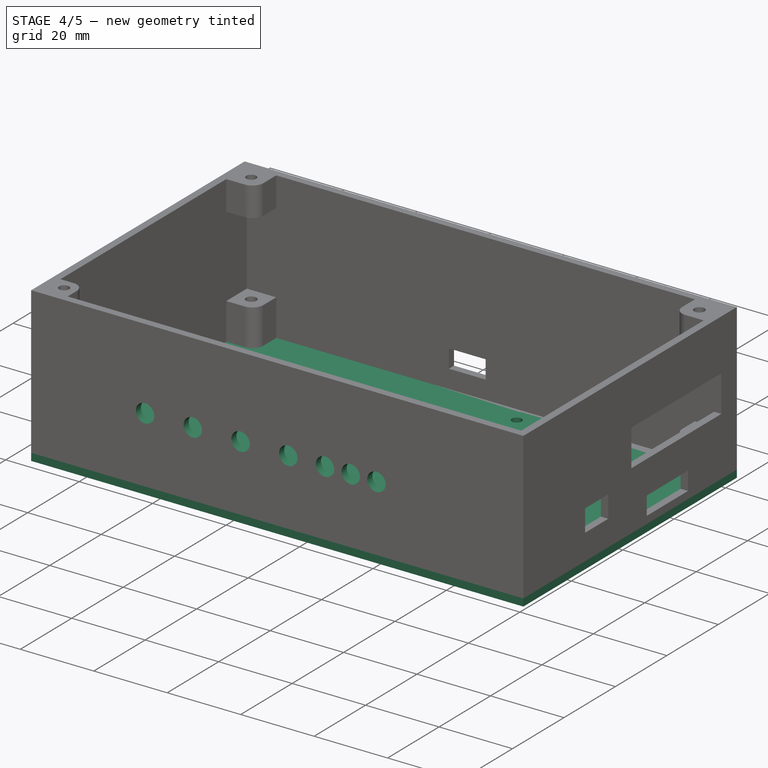
[diagram: stage 4 of 5 — iso view after this stage's code; geometry added in this stage tinted green]
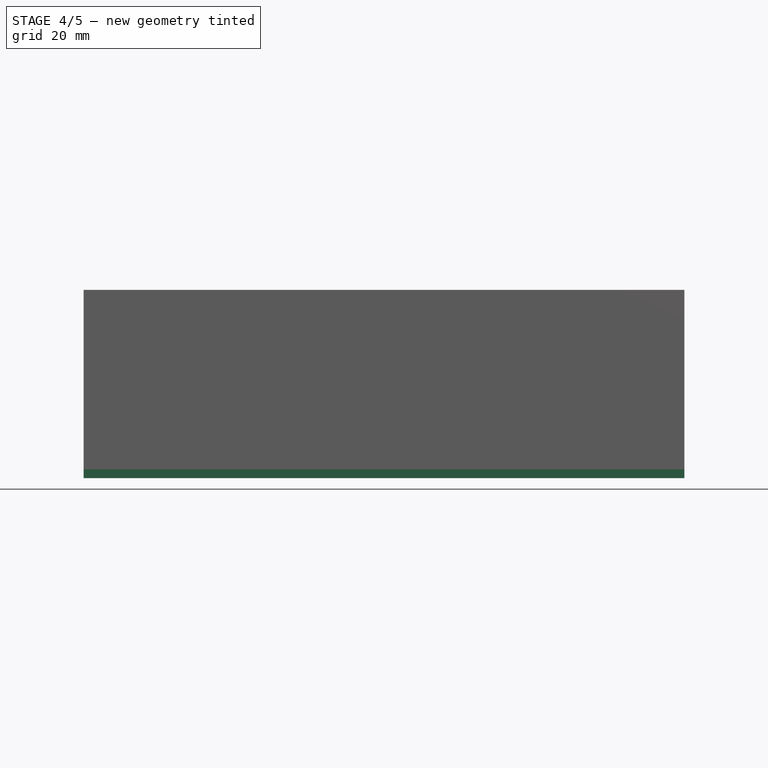
[diagram: stage 4 of 5 — front view after this stage's code; geometry added in this stage tinted green]
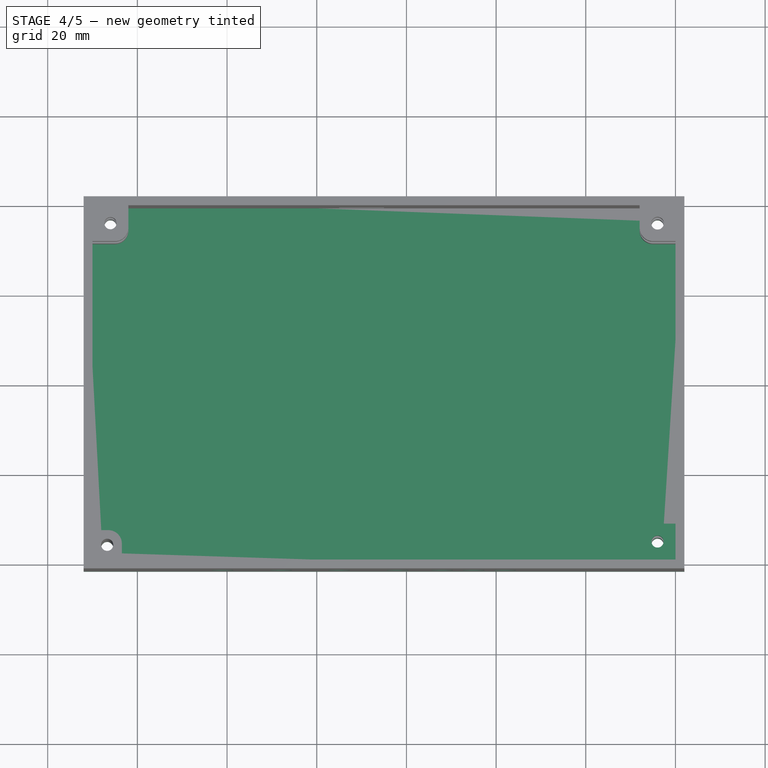
[diagram: stage 4 of 5 — top view after this stage's code; geometry added in this stage tinted green]
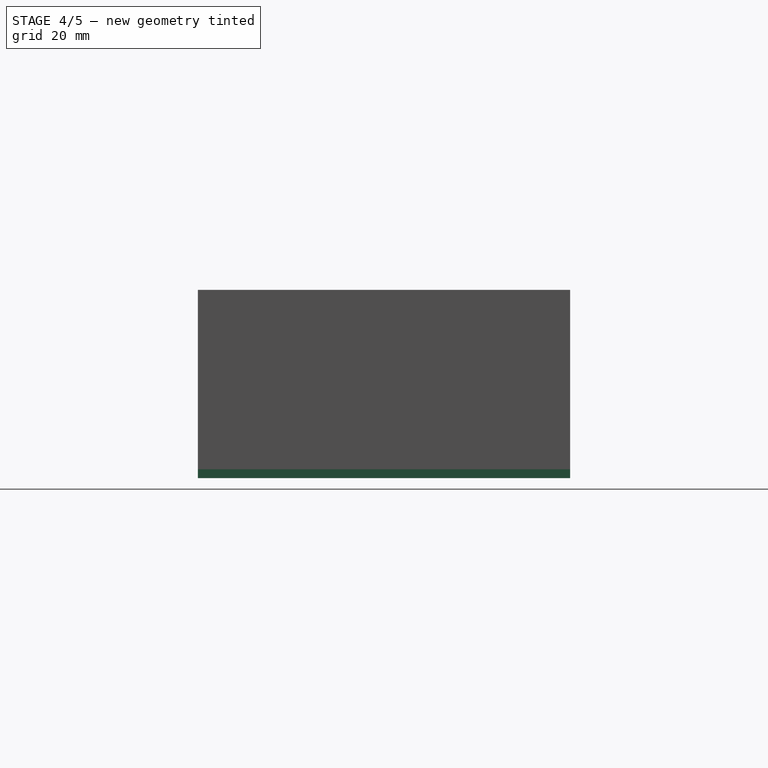
[diagram: stage 4 of 5 — right view after this stage's code; geometry added in this stage tinted green]
FEATURE [Sketcher::SketchObject] Sketch017
  ExternalGeometry = -> [Pad012]
  FullyConstrained = true
  MapMode = 5
  Placement = pos=(0,0,0) rot=(1,0,0;3.14159rad)
  Support = -> [Pad012]
  sketch-geometry (8):
    g0: LineSegment StartX=60 StartY=39.5 StartZ=0 EndX=62 EndY=39.5 EndZ=0
    g1: LineSegment StartX=52 StartY=39.5 StartZ=0 EndX=60 EndY=39.5 EndZ=0
    g2: LineSegment StartX=60 StartY=39.5 StartZ=0 EndX=60 EndY=31.5 EndZ=0
    g3: LineSegment StartX=60 StartY=31.5 StartZ=0 EndX=55 EndY=31.5 EndZ=0
    g4: LineSegment StartX=52 StartY=34.5 StartZ=0 EndX=52 EndY=39.5 EndZ=0
    g5: ArcOfCircle CenterX=55 CenterY=34.5 CenterZ=0 NormalX=0 NormalY=0 NormalZ=1 AngleXU=0 Radius=3 StartAngle=3.14159 EndAngle=4.71239
    g6: LineSegment StartX=52 StartY=39.5 StartZ=0 EndX=60 EndY=31.5 EndZ=0
    g7: Circle CenterX=56 CenterY=35.5 CenterZ=0 NormalX=0 NormalY=0 NormalZ=1 AngleXU=0 Radius=1.35
  constraints (20):
    c: Horizontal(g0)
    c: DistanceX(g0,g0) = 2
    c: Coincident(g0,g-3)
    c: Coincident(g1,g2)
    c: Coincident(g2,g3)
    c: Coincident(g4,g1)
    c: Horizontal(g1)
    c: Horizontal(g3)
    c: Vertical(g2)
    c: Vertical(g4)
    c: DistanceY(g2,g2) = 8
    c: Coincident(g1,g0)
    c: Tangent(g3,g5) = 1.5708
    c: Tangent(g4,g5) = 1.5708
    c: Radius(g5) = 3
    c: DistanceX(g1,g1) = 8
    c: Coincident(g6,g1)
    c: Coincident(g6,g2)
    c: Symmetric(g1,g2,g7)
    c: Radius(g7) = 1.35
FEATURE [PartDesign::Pad] Pad013
  BaseFeature = -> Pad012
  Direction = (0,0,1)
  Length = 5
  Length2 = 100
  Profile = -> Sketch017
  Type = 0
  UseCustomVector = true
FEATURE [Sketcher::SketchObject] Sketch018
  ExternalGeometry = -> [Pad013]
  FullyConstrained = true
  MapMode = 5
  Placement = pos=(0,0,40) rot=(0,0,1;0rad)
  Support = -> [Pad013]
  sketch-geometry (8):
    g0: LineSegment StartX=62 StartY=-39.5 StartZ=0 EndX=60 EndY=-39.5 EndZ=0
    g1: LineSegment StartX=55 StartY=-31.5 StartZ=0 EndX=60 EndY=-31.5 EndZ=0
    g2: LineSegment StartX=60 StartY=-31.5 StartZ=0 EndX=60 EndY=-39.5 EndZ=0
    g3: LineSegment StartX=60 StartY=-39.5 StartZ=0 EndX=52 EndY=-39.5 EndZ=0
    g4: LineSegment StartX=52 StartY=-39.5 StartZ=0 EndX=52 EndY=-34.5 EndZ=0
    g5: ArcOfCircle CenterX=55 CenterY=-34.5 CenterZ=0 NormalX=0 NormalY=0 NormalZ=1 AngleXU=0 Radius=3 StartAngle=1.5708 EndAngle=3.14159
    g6: LineSegment StartX=52 StartY=-39.5 StartZ=0 EndX=60 EndY=-31.5 EndZ=0
    g7: Circle CenterX=56 CenterY=-35.5 CenterZ=0 NormalX=0 NormalY=0 NormalZ=1 AngleXU=0 Radius=1.35
  constraints (20):
    c: Horizontal(g0)
    c: DistanceX(g0,g0) = 2
    c: Coincident(g0,g-3)
    c: Coincident(g1,g2)
    c: Coincident(g2,g3)
    c: Coincident(g3,g4)
    c: Horizontal(g1)
    c: Horizontal(g3)
    c: Vertical(g2)
    c: Vertical(g4)
    c: DistanceY(g2,g2) = 8
    c: Coincident(g2,g0)
    c: Tangent(g4,g5) = 1.5708
    c: Tangent(g1,g5) = 1.5708
    c: Radius(g5) = 3
    c: DistanceX(g3,g3) = 8
    c: Coincident(g6,g3)
    c: Coincident(g6,g1)
    c: Symmetric(g1,g3,g7)
    c: Radius(g7) = 1.35
FEATURE [PartDesign::Pad] Pad014
  BaseFeature = -> Pad013
  Direction = (0,0,-1)
  Length = 5
  Length2 = 100
  Profile = -> Sketch018
  Type = 0
  UseCustomVector = true
FEATURE [PartDesign::ShapeBinder] CopyPad008
  Placement = pos=(0,0,40) rot=(0,0,1;0rad)
  TraceSupport = false
FEATURE [PartDesign::Line] DatumLine
  AttacherType = Attacher::AttachEngineLine
  Length = 20
  MapMode = 29
  Placement = pos=(0,41.5,40) rot=(0.57735,-0.57735,-0.57735;2.0944rad)
  ResizeMode = 0
  Support = -> [CopyPad008]
FEATURE [PartDesign::ShapeBinder] CopyPad014
  Placement = pos=(0,0,40) rot=(0,0,1;0rad)
  TraceSupport = false
FEATURE [PartDesign::Line] DatumLine001
  AttacherType = Attacher::AttachEngineLine
  Length = 20
  MapMode = 29
  Placement = pos=(-72,0,40) rot=(0,0.707107,0.707107;3.14159rad)
  ResizeMode = 0
  Support = -> [CopyPad014]
FEATURE [PartDesign::ShapeBinder] CopyPad008001
  Placement = pos=(0,0,40) rot=(0,0,1;0rad)
  TraceSupport = false
FEATURE [PartDesign::Line] DatumLine002
  AttacherType = Attacher::AttachEngineLine
  Length = 20
  MapMode = 29
  Placement = pos=(62,0,40) rot=(0,0.707107,0.707107;3.14159rad)
  ResizeMode = 0
  Support = -> [CopyPad008001]
FEATURE [PartDesign::ShapeBinder] CopyPad014001
  Placement = pos=(0,0,40) rot=(0,0,1;0rad)
  TraceSupport = false
FEATURE [PartDesign::Line] DatumLine003
  AttacherType = Attacher::AttachEngineLine
  Length = 20
  MapMode = 29
  Placement = pos=(0,-41.5,40) rot=(0.57735,-0.57735,-0.57735;2.0944rad)
  ResizeMode = 0
  Support = -> [CopyPad014001]
FEATURE [PartDesign::ShapeBinder] CopyPad014002
  Placement = pos=(0,0,40) rot=(0,0,1;0rad)
  TraceSupport = false
FEATURE [PartDesign::Point] DatumPoint
  AttacherType = Attacher::AttachEnginePoint
  MapMode = 36
  Placement = pos=(-66,35.5,40) rot=(1,0,0;1.5708rad)
  Support = -> [CopyPad014002]
FEATURE [PartDesign::ShapeBinder] CopyPad008002
  Placement = pos=(0,0,10) rot=(1,0,0;3.14159rad)
  TraceSupport = false
FEATURE [PartDesign::Point] DatumPoint001
  AttacherType = Attacher::AttachEnginePoint
  MapMode = 36
  Placement = pos=(56,35.5,10) rot=(-1,0,0;1.5708rad)
  Support = -> [CopyPad008002]
FEATURE [PartDesign::ShapeBinder] CopyPad014003
  Placement = pos=(0,0,40) rot=(0,0,1;0rad)
  TraceSupport = false
FEATURE [PartDesign::Point] DatumPoint002
  AttacherType = Attacher::AttachEnginePoint
  MapMode = 36
  Placement = pos=(-66.7322,-36.2322,40) rot=(1,0,0;1.5708rad)
  Support = -> [CopyPad014003]
FEATURE [PartDesign::ShapeBinder] CopyPad014004
  Placement = pos=(0,0,40) rot=(0,0,1;0rad)
  TraceSupport = false
FEATURE [PartDesign::Point] DatumPoint003
  AttacherType = Attacher::AttachEnginePoint
  MapMode = 36
  Placement = pos=(56,-35.5,40) rot=(1,0,0;1.5708rad)
  Support = -> [CopyPad014004]
FEATURE [Sketcher::SketchObject] Sketch019
  ExternalGeometry = -> [DatumLine,CopyPad008001,CopyPad014,DatumLine003,DatumPoint003,DatumPoint002,DatumPoint,DatumPoint001]
  FullyConstrained = true
  MapMode = 5
  Support = -> [XY_Plane003]
  sketch-geometry (8):
    g0: LineSegment StartX=-72 StartY=41.5 StartZ=0 EndX=62 EndY=41.5 EndZ=0
    g1: LineSegment StartX=62 StartY=41.5 StartZ=0 EndX=62 EndY=-41.5 EndZ=0
    g2: LineSegment StartX=62 StartY=-41.5 StartZ=0 EndX=-72 EndY=-41.5 EndZ=0
    g3: LineSegment StartX=-72 StartY=-41.5 StartZ=0 EndX=-72 EndY=41.5 EndZ=0
    g4: Circle CenterX=56 CenterY=35.5 CenterZ=0 NormalX=0 NormalY=0 NormalZ=1 AngleXU=0 Radius=1.35
    g5: Circle CenterX=56 CenterY=-35.5 CenterZ=0 NormalX=0 NormalY=0 NormalZ=1 AngleXU=0 Radius=1.35
    g6: Circle CenterX=-66.7322 CenterY=-36.2322 CenterZ=0 NormalX=0 NormalY=0 NormalZ=1 AngleXU=0 Radius=1.35
    g7: Circle CenterX=-66 CenterY=35.5 CenterZ=0 NormalX=0 NormalY=0 NormalZ=1 AngleXU=0 Radius=1.35
  constraints (20):
    c: Coincident(g0,g1)
    c: Coincident(g1,g2)
    c: Coincident(g2,g3)
    c: Coincident(g3,g0)
    c: Horizontal(g0)
    c: Horizontal(g2)
    c: Vertical(g1)
    c: Vertical(g3)
    c: PointOnObject(g0,g-4)
    c: PointOnObject(g0,g-3)
    c: PointOnObject(g0,g-5)
    c: PointOnObject(g2,g-6)
    c: Coincident(g4,g-10)
    c: Coincident(g5,g-7)
    c: Coincident(g6,g-8)
    c: Coincident(g7,g-9)
    c: Radius(g4) = 1.35
    c: Radius(g5) = 1.35
    c: Radius(g6) = 1.35
    c: Radius(g7) = 1.35
FEATURE [PartDesign::Pad] Pad015
  Direction = (0,0,-1)
  Length = 2
  Length2 = 100
  Profile = -> Sketch019
  Type = 0
  UseCustomVector = true
FEATURE [PartDesign::ShapeBinder] CopyPad014005
  Placement = pos=(0,0,40) rot=(0,0,1;0rad)
  TraceSupport = false
FEATURE [PartDesign::Point] DatumPoint004
  AttacherType = Attacher::AttachEnginePoint
  MapMode = 36
  Placement = pos=(-66,35.5,40) rot=(1,0,0;1.5708rad)
  Support = -> [CopyPad014005]
FEATURE [PartDesign::ShapeBinder] CopyPad008003
  Placement = pos=(0,0,40) rot=(0,0,1;0rad)
  TraceSupport = false
FEATURE [PartDesign::Point] DatumPoint005
  AttacherType = Attacher::AttachEnginePoint
  MapMode = 36
  Placement = pos=(56,35.5,40) rot=(1,0,0;1.5708rad)
  Support = -> [CopyPad008003]
FEATURE [PartDesign::ShapeBinder] CopyPad014006
  Placement = pos=(0,0,40) rot=(0,0,1;0rad)
  TraceSupport = false
FEATURE [PartDesign::Point] DatumPoint006
  AttacherType = Attacher::AttachEnginePoint
  MapMode = 36
  Placement = pos=(-66.7322,-36.2322,40) rot=(1,0,0;1.5708rad)
  Support = -> [CopyPad014006]
FEATURE [PartDesign::ShapeBinder] CopyPad014007
  Placement = pos=(0,0,40) rot=(0,0,1;0rad)
  TraceSupport = false
FEATURE [PartDesign::Point] DatumPoint007
  AttacherType = Attacher::AttachEnginePoint
  MapMode = 36
  Placement = pos=(56,-35.5,40) rot=(1,0,0;1.5708rad)
  Support = -> [CopyPad014007]
FEATURE [PartDesign::ShapeBinder] CopyPad008004
  TraceSupport = false
FEATURE [PartDesign::Line] DatumLine004
  AttacherType = Attacher::AttachEngineLine
  Length = 20
  MapMode = 29
  Placement = pos=(0,41.5,0) rot=(0.57735,-0.57735,-0.57735;2.0944rad)
  ResizeMode = 0
  Support = -> [CopyPad008004]
FEATURE [PartDesign::ShapeBinder] CopyPad008005
  Placement = pos=(0,0,40) rot=(0,0,1;0rad)
  TraceSupport = false
FEATURE [PartDesign::Line] DatumLine005
  AttacherType = Attacher::AttachEngineLine
  Length = 20
  MapMode = 29
  Placement = pos=(62,0,40) rot=(0,0.707107,0.707107;3.14159rad)
  ResizeMode = 0
  Support = -> [CopyPad008005]
FEATURE [PartDesign::ShapeBinder] CopyPad014008
  Placement = pos=(0,0,40) rot=(0,0,1;0rad)
  TraceSupport = false
FEATURE [PartDesign::Line] DatumLine006
  AttacherType = Attacher::AttachEngineLine
  Length = 20
  MapMode = 29
  Placement = pos=(-72,0,40) rot=(0,0.707107,0.707107;3.14159rad)
  ResizeMode = 0
  Support = -> [CopyPad014008]
FEATURE [PartDesign::ShapeBinder] CopyPad014009
  Placement = pos=(0,0,40) rot=(0,0,1;0rad)
  TraceSupport = false
FEATURE [PartDesign::Line] DatumLine007
  AttacherType = Attacher::AttachEngineLine
  Length = 20
  MapMode = 29
  Placement = pos=(0,-41.5,40) rot=(0.57735,-0.57735,-0.57735;2.0944rad)
  ResizeMode = 0
  Support = -> [CopyPad014009]
FEATURE [Sketcher::SketchObject] Sketch020
  ExternalGeometry = -> [DatumLine004,CopyPad008005,DatumLine007,DatumLine006,DatumLine005,DatumPoint004,DatumPoint005,DatumPoint007,DatumPoint006]
  FullyConstrained = true
  MapMode = 5
  Support = -> [XY_Plane004]
  sketch-geometry (8):
    g0: LineSegment StartX=-72 StartY=41.5 StartZ=0 EndX=62 EndY=41.5 EndZ=0
    g1: LineSegment StartX=62 StartY=41.5 StartZ=0 EndX=62 EndY=-41.5 EndZ=0
    g2: LineSegment StartX=62 StartY=-41.5 StartZ=0 EndX=-72 EndY=-41.5 EndZ=0
    g3: LineSegment StartX=-72 StartY=-41.5 StartZ=0 EndX=-72 EndY=41.5 EndZ=0
    g4: Circle CenterX=-66 CenterY=35.5 CenterZ=0 NormalX=0 NormalY=0 NormalZ=1 AngleXU=0 Radius=1.35
    g5: Circle CenterX=56 CenterY=35.5 CenterZ=0 NormalX=0 NormalY=0 NormalZ=1 AngleXU=0 Radius=1.35
    g6: Circle CenterX=56 CenterY=-35.5 CenterZ=0 NormalX=0 NormalY=0 NormalZ=1 AngleXU=0 Radius=1.35
    g7: Circle CenterX=-66.7322 CenterY=-36.2322 CenterZ=0 NormalX=0 NormalY=0 NormalZ=1 AngleXU=0 Radius=1.35
  constraints (20):
    c: Coincident(g0,g1)
    c: Coincident(g1,g2)
    c: Coincident(g2,g3)
    c: Coincident(g3,g0)
    c: Horizontal(g0)
    c: Horizontal(g2)
    c: Vertical(g1)
    c: Vertical(g3)
    c: PointOnObject(g0,g-7)
    c: PointOnObject(g0,g-3)
    c: PointOnObject(g0,g-6)
    c: PointOnObject(g2,g-5)
    c: Coincident(g4,g-8)
    c: Coincident(g5,g-9)
    c: Coincident(g6,g-10)
    c: Coincident(g7,g-11)
    c: Radius(g5) = 1.35
    c: Equal(g5,g6)
    c: Equal(g5,g7)
    c: Equal(g5,g4)
FEATURE [PartDesign::Pad] Pad016
  Direction = (0,0,-1)
  Length = 2
  Length2 = 100
  Profile = -> Sketch020
  Type = 0
  UseCustomVector = true
FEATURE [PartDesign::ShapeBinder] CopyPocket001005
  TraceSupport = false
FEATURE [PartDesign::ShapeBinder] CopyPocket001006
  Placement = pos=(0,0,0) rot=(1,0,0;3.14159rad)
  TraceSupport = false
FEATURE [PartDesign::ShapeBinder] CopyPocket001007
  Placement = pos=(0,0,0) rot=(1,0,0;3.14159rad)
  TraceSupport = false
FEATURE [PartDesign::ShapeBinder] CopyPocket001008
  TraceSupport = false
FEATURE [PartDesign::Line] DatumLine012
  AttacherType = Attacher::AttachEngineLine
  Length = 20
  MapMode = 42
  Placement = pos=(20.582,-25.582,0) rot=(0,0,1;0rad)
  ResizeMode = 0
  Support = -> [CopyPocket001005,CopyPocket001006,CopyPocket001007,CopyPocket001008]
FEATURE [PartDesign::ShapeBinder] CopyPocket001009
  Placement = pos=(0,0,0) rot=(1,0,0;3.14159rad)
  TraceSupport = false
FEATURE [PartDesign::Line] DatumLine013
  AttacherType = Attacher::AttachEngineLine
  Length = 20
  MapMode = 29
  Placement = pos=(0,-29.5,0) rot=(0.57735,-0.57735,-0.57735;2.0944rad)
  ResizeMode = 0
  Support = -> [CopyPocket001009]
FEATURE [PartDesign::ShapeBinder] CopyPocket001010
  TraceSupport = false
FEATURE [PartDesign::Line] DatumLine014
  AttacherType = Attacher::AttachEngineLine
  Length = 20
  MapMode = 29
  Placement = pos=(0,-39.5,0) rot=(0.57735,-0.57735,-0.57735;2.0944rad)
  ResizeMode = 0
  Support = -> [CopyPocket001010]
FEATURE [PartDesign::ShapeBinder] CopyPocket001011
  TraceSupport = false
FEATURE [PartDesign::Line] DatumLine015
  AttacherType = Attacher::AttachEngineLine
  Length = 20
  MapMode = 29
  Placement = pos=(0,39.5,0) rot=(0.57735,0.57735,0.57735;2.0944rad)
  ResizeMode = 0
  Support = -> [CopyPocket001011]
FEATURE [PartDesign::ShapeBinder] CopyPocket001012
  TraceSupport = false
FEATURE [PartDesign::Line] DatumLine016
  AttacherType = Attacher::AttachEngineLine
  Length = 20
  MapMode = 29
  Placement = pos=(-60,0,0) rot=(0,0.707107,0.707107;3.14159rad)
  ResizeMode = 0
  Support = -> [CopyPocket001012]
FEATURE [PartDesign::ShapeBinder] CopyPocket001013
  Placement = pos=(0,0,0) rot=(1,0,0;3.14159rad)
  TraceSupport = false
FEATURE [PartDesign::Line] DatumLine017
  AttacherType = Attacher::AttachEngineLine
  Length = 20
  MapMode = 29
  Placement = pos=(0,29.5,0) rot=(0.57735,0.57735,0.57735;2.0944rad)
  ResizeMode = 0
  Support = -> [CopyPocket001013]
FEATURE [PartDesign::ShapeBinder] CopyPocket001014
  TraceSupport = false
FEATURE [PartDesign::Line] DatumLine018
  AttacherType = Attacher::AttachEngineLine
  Length = 20
  MapMode = 29
  Placement = pos=(60,0,0) rot=(1,0,0;1.5708rad)
  ResizeMode = 0
  Support = -> [CopyPocket001014]
FEATURE [Sketcher::SketchObject] Sketch023
  ExternalGeometry = -> [DatumLine018,DatumLine014,DatumLine015,DatumLine016]
  FullyConstrained = true
  MapMode = 5
  Placement = pos=(0,0,-2) rot=(1,0,0;3.14159rad)
  Support = -> [Pad015]
  sketch-geometry (4):
    g0: LineSegment StartX=60 StartY=-39.5 StartZ=0 EndX=-34 EndY=-20.5 EndZ=0
    g1: Circle CenterX=-34 CenterY=-20.5 CenterZ=0 NormalX=0 NormalY=0 NormalZ=1 AngleXU=0 Radius=3.5
    g2: LineSegment StartX=-34 StartY=-20.5 StartZ=0 EndX=-46 EndY=-29.5 EndZ=0
    g3: Circle CenterX=-46 CenterY=-29.5 CenterZ=0 NormalX=0 NormalY=0 NormalZ=1 AngleXU=0 Radius=1
  constraints (11):
    c: PointOnObject(g0,g-3)
    c: DistanceX(g0,g0) = 94
    c: DistanceY(g0,g0) = 19
    c: Coincident(g1,g0)
    c: Diameter(g1) = 7
    c: Coincident(g2,g1)
    c: DistanceX(g2,g2) = 12
    c: DistanceY(g2,g2) = 9
    c: Coincident(g3,g2)
    c: Diameter(g3) = 2
    c: PointOnObject(g0,g-5)
FEATURE [PartDesign::Pocket] Pocket005
  BaseFeature = -> Pad015
  Length = 2
  Length2 = 100
  Profile = -> Sketch023
  Type = 0
FEATURE [Sketcher::SketchObject] Sketch026
  ExternalGeometry = -> [Pad014]
  FullyConstrained = true
  MapMode = 5
  Placement = pos=(0,-41.5,0) rot=(1,0,0;1.5708rad)
  Support = -> [Pad014]
  sketch-geometry (16):
    g0: LineSegment StartX=62 StartY=0 StartZ=0 EndX=-41 EndY=0 EndZ=0
    g1: LineSegment StartX=-41 StartY=0 StartZ=0 EndX=-41 EndY=18 EndZ=0
    g2: Circle CenterX=-41 CenterY=18 CenterZ=0 NormalX=0 NormalY=0 NormalZ=1 AngleXU=0 Radius=2.5
    g3: LineSegment StartX=-41 StartY=18 StartZ=0 EndX=-28 EndY=18 EndZ=0
    g4: LineSegment StartX=-28 StartY=18 StartZ=0 EndX=-15 EndY=18 EndZ=0
    g5: LineSegment StartX=-15 StartY=18 StartZ=0 EndX=-2 EndY=18 EndZ=0
    g6: Circle CenterX=-28 CenterY=18 CenterZ=0 NormalX=0 NormalY=0 NormalZ=1 AngleXU=0 Radius=2.5
    g7: Circle CenterX=-15 CenterY=18 CenterZ=0 NormalX=0 NormalY=0 NormalZ=1 AngleXU=0 Radius=2.5
    g8: Circle CenterX=-2 CenterY=18 CenterZ=0 NormalX=0 NormalY=0 NormalZ=1 AngleXU=0 Radius=5e-16
    g9: Circle CenterX=-2 CenterY=18 CenterZ=0 NormalX=0 NormalY=0 NormalZ=1 AngleXU=0 Radius=2.5
    g10: LineSegment StartX=-2 StartY=18 StartZ=0 EndX=8 EndY=18 EndZ=0
    g11: LineSegment StartX=8 StartY=18 StartZ=0 EndX=15 EndY=18 EndZ=0
    g12: LineSegment StartX=15 StartY=18 StartZ=0 EndX=22 EndY=18 EndZ=0
    g13: Circle CenterX=8 CenterY=18 CenterZ=0 NormalX=0 NormalY=0 NormalZ=1 AngleXU=0 Radius=2.5
    g14: Circle CenterX=15 CenterY=18 CenterZ=0 NormalX=0 NormalY=0 NormalZ=1 AngleXU=0 Radius=2.5
    g15: Circle CenterX=22 CenterY=18 CenterZ=0 NormalX=0 NormalY=0 NormalZ=1 AngleXU=0 Radius=2.5
  constraints (40):
    c: Horizontal(g0)
    c: DistanceX(g0,g0) = 103
    c: Coincident(g0,g-3)
    c: DistanceY(g1,g1) = 18
    c: Vertical(g1)
    c: Coincident(g1,g0)
    c: Coincident(g2,g1)
    c: Diameter(g2) = 5
    c: Coincident(g3,g2)
    c: Coincident(g4,g3)
    c: Coincident(g5,g4)
    c: Horizontal(g5)
    c: Horizontal(g3)
    c: Horizontal(g4)
    c: DistanceX(g3,g3) = 13
    c: DistanceX(g4,g4) = 13
    c: DistanceX(g5,g5) = 13
    c: Coincident(g6,g3)
    c: Coincident(g7,g4)
    c: Coincident(g8,g5)
    c: Tangent(g8,g5)
    c: Coincident(g9,g8)
    c: Diameter(g6) = 5
    c: Diameter(g7) = 5
    c: Diameter(g9) = 5
    c: Coincident(g10,g8)
    c: Coincident(g11,g10)
    c: Coincident(g12,g11)
    c: Horizontal(g10)
    c: Horizontal(g11)
    c: Horizontal(g12)
    c: DistanceX(g10,g10) = 10
    c: DistanceX(g11,g11) = 7
    c: DistanceX(g12,g12) = 7
    c: Coincident(g13,g10)
    c: Coincident(g14,g11)
    c: Coincident(g15,g12)
    c: Diameter(g13) = 5
    c: Diameter(g14) = 5
    c: Diameter(g15) = 5
FEATURE [PartDesign::Pocket] Pocket008
  BaseFeature = -> Pad014
  Length = 5
  Length2 = 100
  Profile = -> Sketch026
  Type = 0
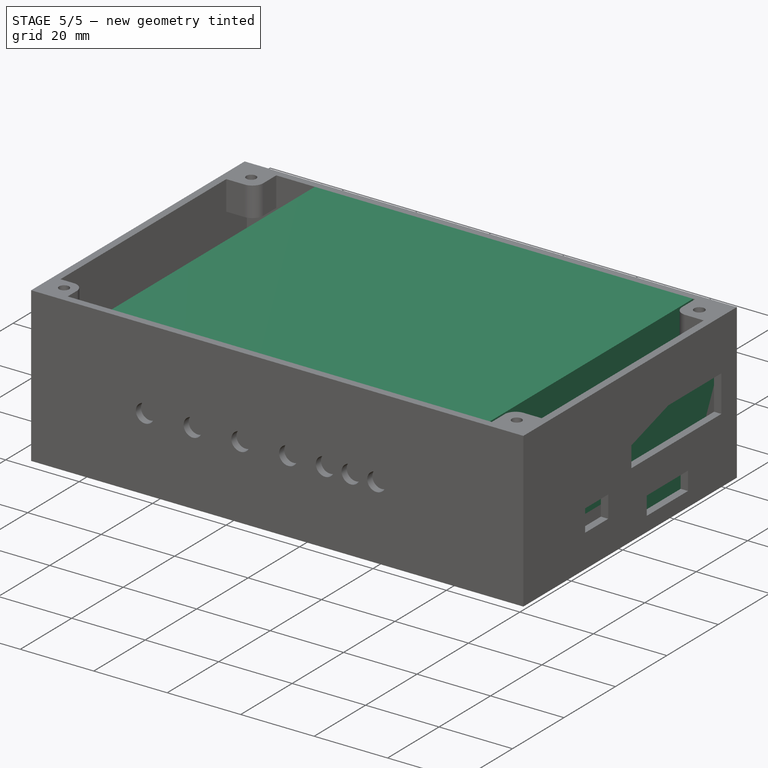
[diagram: stage 5 of 5 — iso view after this stage's code; geometry added in this stage tinted green]
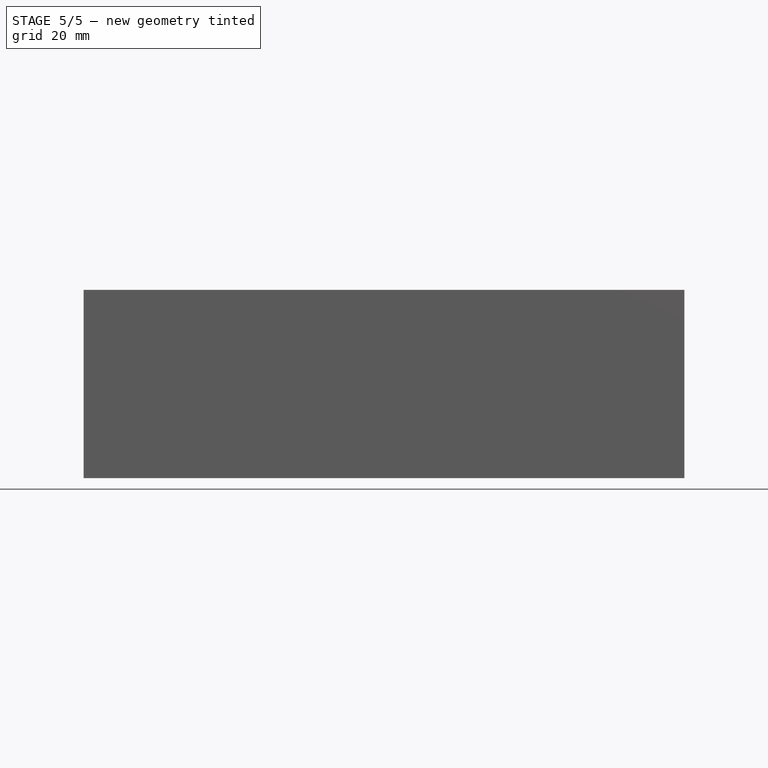
[diagram: stage 5 of 5 — front view after this stage's code; geometry added in this stage tinted green]
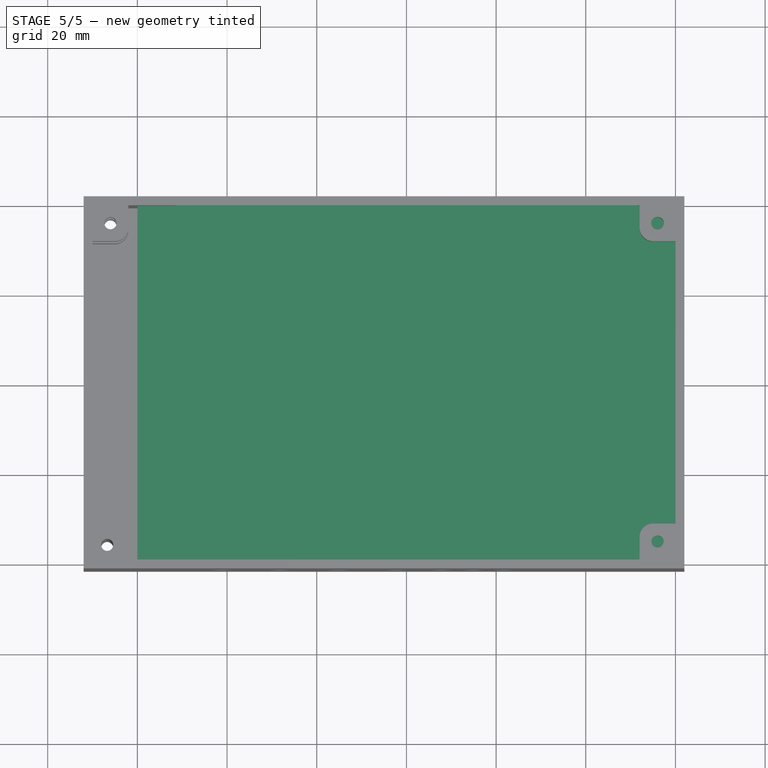
[diagram: stage 5 of 5 — top view after this stage's code; geometry added in this stage tinted green]
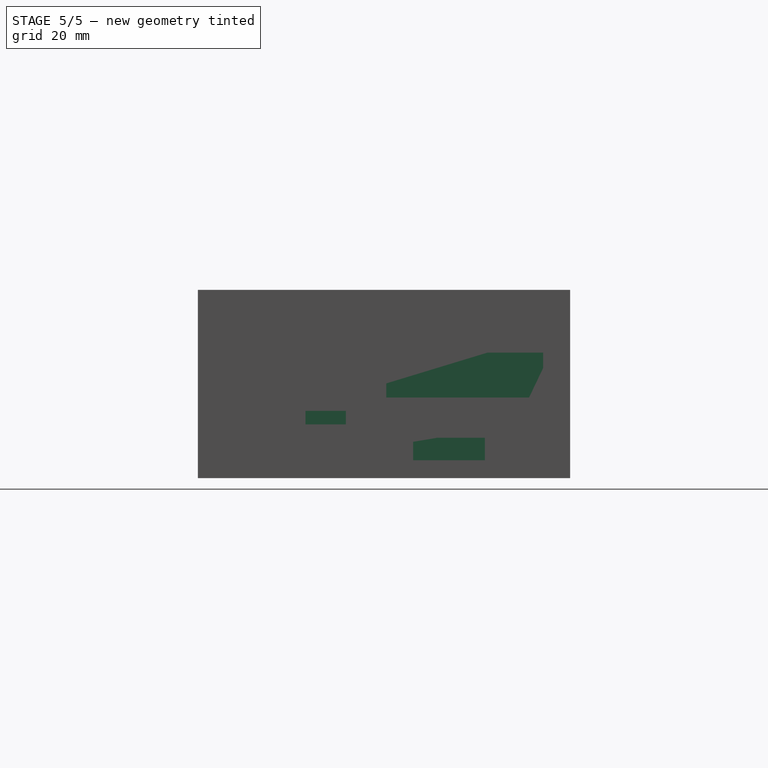
[diagram: stage 5 of 5 — right view after this stage's code; geometry added in this stage tinted green]
FEATURE [Sketcher::SketchObject] Sketch
  FullyConstrained = true
  MapMode = 5
  Support = -> [XY_Plane]
  sketch-geometry (7):
    g0: LineSegment StartX=-60 StartY=39.5 StartZ=0 EndX=60 EndY=39.5 EndZ=0
    g1: LineSegment StartX=60 StartY=39.5 StartZ=0 EndX=60 EndY=-39.5 EndZ=0
    g2: LineSegment StartX=60 StartY=-39.5 StartZ=0 EndX=-60 EndY=-39.5 EndZ=0
    g3: LineSegment StartX=-60 StartY=-39.5 StartZ=0 EndX=-60 EndY=39.5 EndZ=0
    g4: LineSegment StartX=60 StartY=39.5 StartZ=0 EndX=0 EndY=0 EndZ=0
    g5: LineSegment StartX=0 StartY=0 StartZ=0 EndX=-60 EndY=39.5 EndZ=0
    g6: LineSegment StartX=0 StartY=0 StartZ=0 EndX=60 EndY=-39.5 EndZ=0
  constraints (18):
    c: Coincident(g0,g1)
    c: Coincident(g1,g2)
    c: Coincident(g2,g3)
    c: Coincident(g3,g0)
    c: Horizontal(g0)
    c: Horizontal(g2)
    c: Vertical(g1)
    c: Vertical(g3)
    c: Coincident(g4,g0)
    c: Coincident(g4,g-1)
    c: Coincident(g5,g-1)
    c: Coincident(g5,g0)
    c: Equal(g5,g4)
    c: Coincident(g6,g-1)
    c: Coincident(g6,g1)
    c: Equal(g4,g6)
    c: DistanceX(g0,g0) = 120
    c: DistanceY(g1,g1) = 79
FEATURE [PartDesign::Pad] Pad
  Direction = (1,1,1)
  Length = 31
  Length2 = 100
  Profile = -> Sketch
  Type = 0
FEATURE [Sketcher::SketchObject] Sketch001
  AttachmentOffset = pos=(0,0,31) rot=(0,0,1;0rad)
  FullyConstrained = true
  MapMode = 5
  Placement = pos=(0,0,31) rot=(0,0,1;0rad)
  Support = -> [XY_Plane]
  sketch-geometry (7):
    g0: LineSegment StartX=-51.5 StartY=39.5 StartZ=0 EndX=51.5 EndY=39.5 EndZ=0
    g1: LineSegment StartX=51.5 StartY=39.5 StartZ=0 EndX=51.5 EndY=-39.5 EndZ=0
    g2: LineSegment StartX=51.5 StartY=-39.5 StartZ=0 EndX=-51.5 EndY=-39.5 EndZ=0
    g3: LineSegment StartX=-51.5 StartY=-39.5 StartZ=0 EndX=-51.5 EndY=39.5 EndZ=0
    g4: LineSegment StartX=51.5 StartY=39.5 StartZ=0 EndX=0 EndY=0 EndZ=0
    g5: LineSegment StartX=0 StartY=0 StartZ=0 EndX=-51.5 EndY=39.5 EndZ=0
    g6: LineSegment StartX=0 StartY=0 StartZ=0 EndX=51.5 EndY=-39.5 EndZ=0
  constraints (18):
    c: Coincident(g0,g1)
    c: Coincident(g1,g2)
    c: Coincident(g2,g3)
    c: Coincident(g3,g0)
    c: Horizontal(g0)
    c: Horizontal(g2)
    c: Vertical(g1)
    c: Vertical(g3)
    c: Coincident(g4,g0)
    c: Coincident(g4,g-1)
    c: Coincident(g5,g-1)
    c: Coincident(g5,g0)
    c: Coincident(g6,g-1)
    c: Coincident(g6,g2)
    c: Equal(g6,g4)
    c: Equal(g4,g5)
    c: DistanceX(g0,g0) = 103
    c: DistanceY(g1,g1) = 79
FEATURE [PartDesign::Pad] Pad001
  BaseFeature = -> Pad
  Direction = (1,1,1)
  Length = 9
  Length2 = 100
  Profile = -> Sketch001
  Type = 0
FEATURE [Sketcher::SketchObject] Sketch003
  ExternalGeometry = -> [Pad001]
  FullyConstrained = false
  MapMode = 5
  Placement = pos=(0,0,0) rot=(1,0,0;3.14159rad)
  Support = -> [Pad001]
  sketch-geometry (7):
    g0: LineSegment StartX=35 StartY=-29.5 StartZ=0 EndX=60 EndY=-29.5 EndZ=0
    g1: LineSegment StartX=60 StartY=-29.5 StartZ=0 EndX=60 EndY=-39.5 EndZ=0
    g2: LineSegment StartX=60 StartY=-39.5 StartZ=0 EndX=35 EndY=-39.5 EndZ=0
    g3: LineSegment StartX=35 StartY=-39.5 StartZ=0 EndX=35 EndY=-29.5 EndZ=0
    g4: GeomPoint X=60 Y=-39.5 Z=0
    g5: GeomPoint X=60 Y=-39.5 Z=0
    g6: GeomPoint X=50.3936 Y=-24.1925 Z=0
  constraints (13):
    c: Coincident(g0,g1)
    c: Coincident(g1,g2)
    c: Coincident(g2,g3)
    c: Coincident(g3,g0)
    c: Horizontal(g0)
    c: Horizontal(g2)
    c: Vertical(g1)
    c: Vertical(g3)
    c: Coincident(g4,g1)
    c: Coincident(g5,g-4)
    c: Coincident(g1,g5)
    c: DistanceY(g3,g3) = 10
    c: DistanceX(g0,g0) = 25
FEATURE [PartDesign::Pocket] Pocket
  BaseFeature = -> Pad001
  Length = 10
  Length2 = 100
  Profile = -> Sketch003
  Type = 0
FEATURE [Sketcher::SketchObject] Sketch004
  ExternalGeometry = -> [Pocket]
  FullyConstrained = true
  MapMode = 5
  Placement = pos=(0,0,0) rot=(1,0,0;3.14159rad)
  Support = -> [Pocket]
  sketch-geometry (5):
    g0: LineSegment StartX=35 StartY=39.5 StartZ=0 EndX=60 EndY=39.5 EndZ=0
    g1: LineSegment StartX=60 StartY=39.5 StartZ=0 EndX=60 EndY=29.5 EndZ=0
    g2: LineSegment StartX=60 StartY=29.5 StartZ=0 EndX=35 EndY=29.5 EndZ=0
    g3: LineSegment StartX=35 StartY=29.5 StartZ=0 EndX=35 EndY=39.5 EndZ=0
    g4: GeomPoint X=60 Y=39.5 Z=0
  constraints (12):
    c: Coincident(g0,g1)
    c: Coincident(g1,g2)
    c: Coincident(g2,g3)
    c: Coincident(g3,g0)
    c: Horizontal(g0)
    c: Horizontal(g2)
    c: Vertical(g1)
    c: Vertical(g3)
    c: Coincident(g4,g0)
    c: Coincident(g0,g-3)
    c: DistanceX(g0,g0) = 25
    c: DistanceY(g1,g1) = 10
FEATURE [PartDesign::Pocket] Pocket001
  BaseFeature = -> Pocket
  Length = 10
  Length2 = 100
  Profile = -> Sketch004
  Type = 0
FEATURE [PartDesign::ShapeBinder] CopyPocket001001
  Placement = pos=(0,0,40) rot=(0,0,1;0rad)
  TraceSupport = false
FEATURE [PartDesign::Line] DatumLine008
  AttacherType = Attacher::AttachEngineLine
  Length = 20
  MapMode = 29
  Placement = pos=(0,39.5,40) rot=(0.57735,0.57735,0.57735;2.0944rad)
  ResizeMode = 0
  Support = -> [CopyPocket001001]
FEATURE [PartDesign::ShapeBinder] CopyPocket001002
  Placement = pos=(0,0,40) rot=(0,0,1;0rad)
  TraceSupport = false
FEATURE [PartDesign::Line] DatumLine009
  AttacherType = Attacher::AttachEngineLine
  Length = 20
  MapMode = 29
  Placement = pos=(0,-39.5,40) rot=(0.57735,-0.57735,-0.57735;2.0944rad)
  ResizeMode = 0
  Support = -> [CopyPocket001002]
FEATURE [PartDesign::ShapeBinder] CopyPocket001003
  Placement = pos=(0,0,40) rot=(0,0,1;0rad)
  TraceSupport = false
FEATURE [PartDesign::Line] DatumLine010
  AttacherType = Attacher::AttachEngineLine
  Length = 20
  MapMode = 29
  Placement = pos=(-51.5,0,40) rot=(0,0.707107,0.707107;3.14159rad)
  ResizeMode = 0
  Support = -> [CopyPocket001003]
FEATURE [PartDesign::ShapeBinder] CopyPocket001004
  Placement = pos=(0,0,40) rot=(0,0,1;0rad)
  TraceSupport = false
FEATURE [PartDesign::Line] DatumLine011
  AttacherType = Attacher::AttachEngineLine
  Length = 20
  MapMode = 29
  Placement = pos=(51.5,0,40) rot=(1,0,0;1.5708rad)
  ResizeMode = 0
  Support = -> [CopyPocket001004]
FEATURE [Sketcher::SketchObject] Sketch022
  ExternalGeometry = -> [DatumLine011,DatumLine008,DatumLine007,DatumLine010]
  FullyConstrained = false
  MapMode = 5
  sketch-geometry (9):
    g0: LineSegment StartX=-49 StartY=30.5 StartZ=0 EndX=39 EndY=30.5 EndZ=0
    g1: LineSegment StartX=39 StartY=30.5 StartZ=0 EndX=39 EndY=-36.5 EndZ=0
    g2: LineSegment StartX=39 StartY=-36.5 StartZ=0 EndX=-49 EndY=-36.5 EndZ=0
    g3: LineSegment StartX=-49 StartY=-36.5 StartZ=0 EndX=-49 EndY=30.5 EndZ=0
    g4: LineSegment StartX=0 StartY=0 StartZ=0 EndX=0 EndY=-3 EndZ=0
    g5: LineSegment StartX=39 StartY=-36.5 StartZ=0 EndX=0 EndY=-3 EndZ=0
    g6: LineSegment StartX=0 StartY=-3 StartZ=0 EndX=39 EndY=30.5 EndZ=0
    g7: LineSegment StartX=-72 StartY=41.5 StartZ=0 EndX=-49 EndY=30.5 EndZ=0
    g8: LineSegment StartX=39 StartY=30.5 StartZ=0 EndX=62 EndY=41.5 EndZ=0
  constraints (23):
    c: Coincident(g0,g1)
    c: Coincident(g1,g2)
    c: Coincident(g2,g3)
    c: Coincident(g3,g0)
    c: Horizontal(g0)
    c: Horizontal(g2)
    c: Vertical(g1)
    c: Vertical(g3)
    c: DistanceX(g0,g0) = 88
    c: DistanceY(g1,g1) = 67
    c: Vertical(g4)
    c: DistanceY(g4,g4) = 3
    c: Coincident(g4,g-1)
    c: Coincident(g5,g1)
    c: Coincident(g5,g4)
    c: Coincident(g6,g4)
    c: Coincident(g6,g0)
    c: Equal(g6,g5)
    c: Coincident(g7,g-7)
    c: Coincident(g7,g0)
    c: Coincident(g8,g0)
    c: Coincident(g8,g-8)
    c: Equal(g8,g7)
FEATURE [PartDesign::Pocket] Pocket004
  BaseFeature = -> Pad016
  Length = 2
  Length2 = 100
  Profile = -> Sketch022
  Type = 0
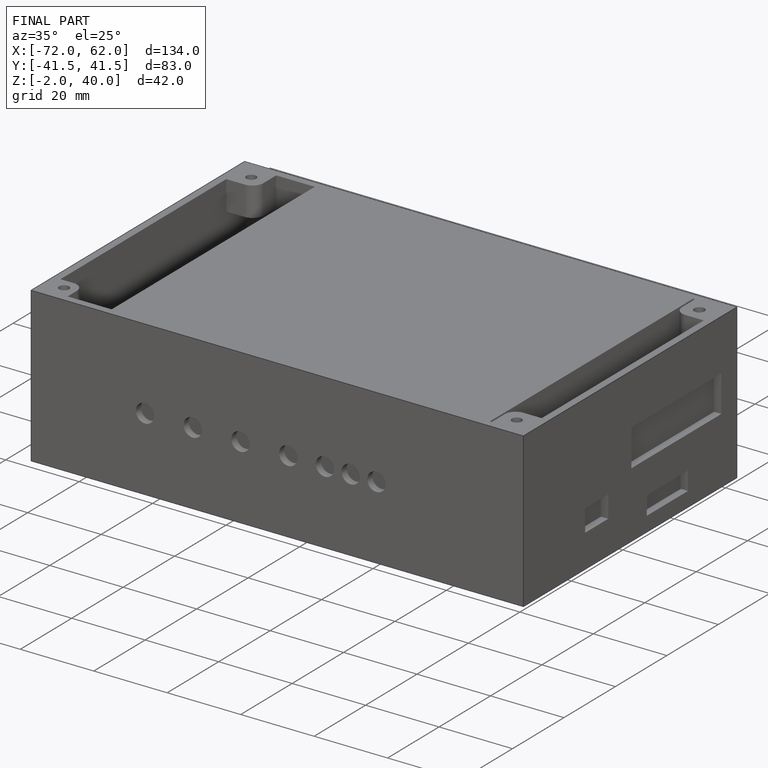
[diagram: finished part — iso view with bounding-box wireframe]
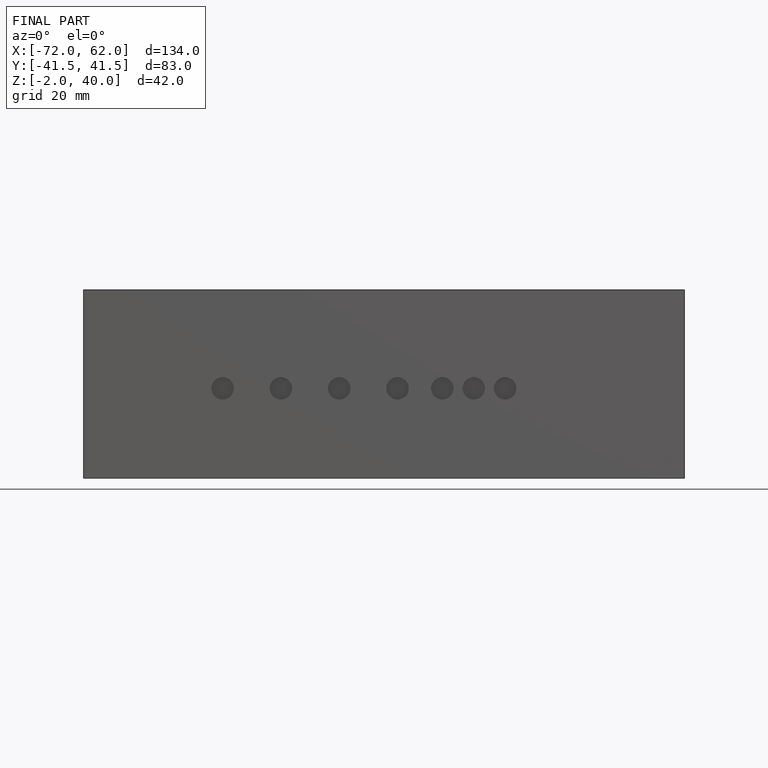
[diagram: finished part — front view with bounding-box wireframe]
